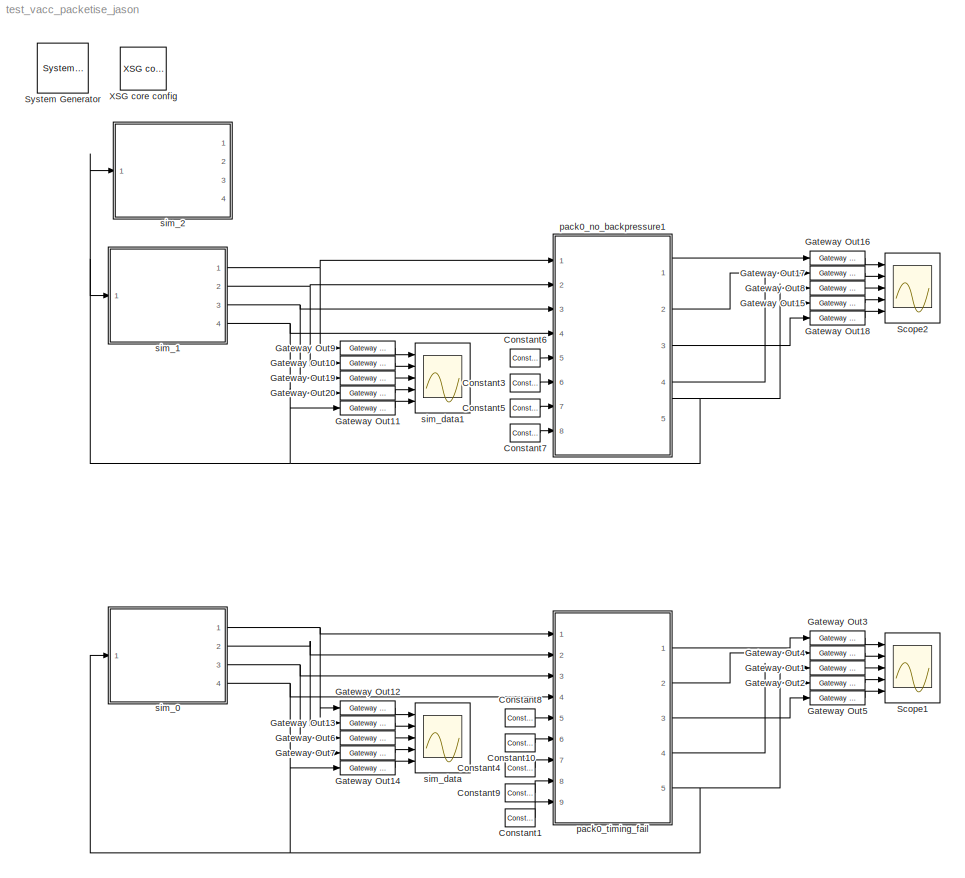
MODEL test_vacc_packetise_jason
KIND model
BLOCK [Reference]  System Generator  REF=xbsIndex_r3/ System Generator
  AttributesFormatString = System\\nGenerator
  Ports = []
  ShowPortLabels = on
  SourceBlock = xbsIndex_r3/ System Generator
  SourceType = Xilinx System Generator
  Tag = genX
  UserData = DataTag0
  UserDataPersistent = on
  core_generation = According to Block Masks
  dbl_ovrd = According to Block Masks
  deprecated_control = off
  directory = ./netlist
  eval_field = 0
  incr_netlist = off
  package = bg575
  part = xc2v1000
  run_coregen = off
  simulink_period = 1
  speed = -4
  synthesis_tool = XST
  sysclk_period = 100
  testbench = off
  trim_vbits = Everywhere in SubSystem
  xilinxfamily = Virtex2
BLOCK [Reference] Constant1  REF=xbsIndex_r3/Constant
  Ports = [0, 1]
  SourceBlock = xbsIndex_r3/Constant
  SourceType = Xilinx Constant Block
  arith_type = Boolean
  bin_pt = 0
  carry = CIN
  const = 1
  dbl_ovrd = off
  equ = P=C
  explicit_period = on
  inp1 = P
  inp2 = PCIN>>17
  iostate = 0
  n_bits = 32
  opr = +
  opselect = C
  period = 1
BLOCK [Reference] Constant10  REF=xbsIndex_r3/Constant
  Ports = [0, 1]
  SourceBlock = xbsIndex_r3/Constant
  SourceType = Xilinx Constant Block
  arith_type = Unsigned
  bin_pt = 0
  carry = CIN
  const = 1
  dbl_ovrd = off
  equ = P=C
  explicit_period = on
  inp1 = P
  inp2 = PCIN>>17
  iostate = 0
  n_bits = 32
  opr = +
  opselect = C
  period = 1
BLOCK [Reference] Constant3  REF=xbsIndex_r3/Constant
  Ports = [0, 1]
  SourceBlock = xbsIndex_r3/Constant
  SourceType = Xilinx Constant Block
  arith_type = Unsigned
  bin_pt = 0
  carry = CIN
  const = 1
  dbl_ovrd = off
  equ = P=C
  explicit_period = on
  inp1 = P
  inp2 = PCIN>>17
  iostate = 0
  n_bits = 32
  opr = +
  opselect = C
  period = 1
BLOCK [Reference] Constant4  REF=xbsIndex_r3/Constant
  Ports = [0, 1]
  SourceBlock = xbsIndex_r3/Constant
  SourceType = Xilinx Constant Block
  arith_type = Unsigned
  bin_pt = 0
  carry = CIN
  const = 0
  dbl_ovrd = off
  equ = P=C
  explicit_period = on
  inp1 = P
  inp2 = PCIN>>17
  iostate = 0
  n_bits = 32
  opr = +
  opselect = C
  period = 1
BLOCK [Reference] Constant5  REF=xbsIndex_r3/Constant
  Ports = [0, 1]
  SourceBlock = xbsIndex_r3/Constant
  SourceType = Xilinx Constant Block
  arith_type = Unsigned
  bin_pt = 0
  carry = CIN
  const = 0
  dbl_ovrd = off
  equ = P=C
  explicit_period = on
  inp1 = P
  inp2 = PCIN>>17
  iostate = 0
  n_bits = 32
  opr = +
  opselect = C
  period = 1
BLOCK [Reference] Constant6  REF=xbsIndex_r3/Constant
  Ports = [0, 1]
  SourceBlock = xbsIndex_r3/Constant
  SourceType = Xilinx Constant Block
  arith_type = Unsigned
  bin_pt = 0
  carry = CIN
  const = 0
  dbl_ovrd = off
  equ = P=C
  explicit_period = on
  inp1 = P
  inp2 = PCIN>>17
  iostate = 0
  n_bits = 32
  opr = +
  opselect = C
  period = 1
BLOCK [Reference] Constant7  REF=xbsIndex_r3/Constant
  Ports = [0, 1]
  SourceBlock = xbsIndex_r3/Constant
  SourceType = Xilinx Constant Block
  arith_type = Unsigned
  bin_pt = 0
  carry = CIN
  const = 400
  dbl_ovrd = off
  equ = P=C
  explicit_period = on
  inp1 = P
  inp2 = PCIN>>17
  iostate = 0
  n_bits = 32
  opr = +
  opselect = C
  period = 1
BLOCK [Reference] Constant8  REF=xbsIndex_r3/Constant
  Ports = [0, 1]
  SourceBlock = xbsIndex_r3/Constant
  SourceType = Xilinx Constant Block
  arith_type = Unsigned
  bin_pt = 0
  carry = CIN
  const = 0
  dbl_ovrd = off
  equ = P=C
  explicit_period = on
  inp1 = P
  inp2 = PCIN>>17
  iostate = 0
  n_bits = 16
  opr = +
  opselect = C
  period = 1
BLOCK [Reference] Constant9  REF=xbsIndex_r3/Constant
  Ports = [0, 1]
  SourceBlock = xbsIndex_r3/Constant
  SourceType = Xilinx Constant Block
  arith_type = Unsigned
  bin_pt = 0
  carry = CIN
  const = 400
  dbl_ovrd = off
  equ = P=C
  explicit_period = on
  inp1 = P
  inp2 = PCIN>>17
  iostate = 0
  n_bits = 32
  opr = +
  opselect = C
  period = 1
BLOCK [Reference] Gateway Out1  REF=xbsIndex_r3/Gateway Out
  LOCs = {}
  Ports = [1, 1]
  SourceBlock = xbsIndex_r3/Gateway Out
  SourceType = Xilinx Gateway Out
  arith_type = Boolean
  bin_pt = 6
  hdl_port = on
  locs_specified = off
  nbits = 8
  needs_fixed_name = off
  output_type = Double
  overflow = Wrap
  quantization = Truncate
  show_param = off
  timing_constraint = None
  xl_area = [0, 0, 0, 0, 0, 0, 0]
  xl_use_area = off
BLOCK [Reference] Gateway Out10  REF=xbsIndex_r3/Gateway Out
  LOCs = {}
  Ports = [1, 1]
  SourceBlock = xbsIndex_r3/Gateway Out
  SourceType = Xilinx Gateway Out
  arith_type = Boolean
  bin_pt = 6
  hdl_port = on
  locs_specified = off
  nbits = 8
  needs_fixed_name = off
  output_type = Double
  overflow = Wrap
  quantization = Truncate
  show_param = off
  timing_constraint = None
  xl_area = [0, 0, 0, 0, 0, 0, 0]
  xl_use_area = off
BLOCK [Reference] Gateway Out11  REF=xbsIndex_r3/Gateway Out
  LOCs = {}
  Ports = [1, 1]
  SourceBlock = xbsIndex_r3/Gateway Out
  SourceType = Xilinx Gateway Out
  arith_type = Boolean
  bin_pt = 6
  hdl_port = on
  locs_specified = off
  nbits = 8
  needs_fixed_name = off
  output_type = Double
  overflow = Wrap
  quantization = Truncate
  show_param = off
  timing_constraint = None
  xl_area = [0, 0, 0, 0, 0, 0, 0]
  xl_use_area = off
BLOCK [Reference] Gateway Out12  REF=xbsIndex_r3/Gateway Out
  LOCs = {}
  Ports = [1, 1]
  SourceBlock = xbsIndex_r3/Gateway Out
  SourceType = Xilinx Gateway Out
  arith_type = Boolean
  bin_pt = 6
  hdl_port = on
  locs_specified = off
  nbits = 8
  needs_fixed_name = off
  output_type = Double
  overflow = Wrap
  quantization = Truncate
  show_param = off
  timing_constraint = None
  xl_area = [0, 0, 0, 0, 0, 0, 0]
  xl_use_area = off
BLOCK [Reference] Gateway Out13  REF=xbsIndex_r3/Gateway Out
  LOCs = {}
  Ports = [1, 1]
  SourceBlock = xbsIndex_r3/Gateway Out
  SourceType = Xilinx Gateway Out
  arith_type = Boolean
  bin_pt = 6
  hdl_port = on
  locs_specified = off
  nbits = 8
  needs_fixed_name = off
  output_type = Double
  overflow = Wrap
  quantization = Truncate
  show_param = off
  timing_constraint = None
  xl_area = [0, 0, 0, 0, 0, 0, 0]
  xl_use_area = off
BLOCK [Reference] Gateway Out14  REF=xbsIndex_r3/Gateway Out
  LOCs = {}
  Ports = [1, 1]
  SourceBlock = xbsIndex_r3/Gateway Out
  SourceType = Xilinx Gateway Out
  arith_type = Boolean
  bin_pt = 6
  hdl_port = on
  locs_specified = off
  nbits = 8
  needs_fixed_name = off
  output_type = Double
  overflow = Wrap
  quantization = Truncate
  show_param = off
  timing_constraint = None
  xl_area = [0, 0, 0, 0, 0, 0, 0]
  xl_use_area = off
BLOCK [Reference] Gateway Out15  REF=xbsIndex_r3/Gateway Out
  LOCs = {}
  Ports = [1, 1]
  SourceBlock = xbsIndex_r3/Gateway Out
  SourceType = Xilinx Gateway Out
  arith_type = Boolean
  bin_pt = 6
  hdl_port = on
  locs_specified = off
  nbits = 8
  needs_fixed_name = off
  output_type = Double
  overflow = Wrap
  quantization = Truncate
  show_param = off
  timing_constraint = None
  xl_area = [0, 0, 0, 0, 0, 0, 0]
  xl_use_area = off
BLOCK [Reference] Gateway Out16  REF=xbsIndex_r3/Gateway Out
  LOCs = {}
  Ports = [1, 1]
  SourceBlock = xbsIndex_r3/Gateway Out
  SourceType = Xilinx Gateway Out
  arith_type = Boolean
  bin_pt = 6
  hdl_port = on
  locs_specified = off
  nbits = 8
  needs_fixed_name = off
  output_type = Double
  overflow = Wrap
  quantization = Truncate
  show_param = off
  timing_constraint = None
  xl_area = [0, 0, 0, 0, 0, 0, 0]
  xl_use_area = off
BLOCK [Reference] Gateway Out17  REF=xbsIndex_r3/Gateway Out
  LOCs = {}
  Ports = [1, 1]
  SourceBlock = xbsIndex_r3/Gateway Out
  SourceType = Xilinx Gateway Out
  arith_type = Boolean
  bin_pt = 6
  hdl_port = on
  locs_specified = off
  nbits = 8
  needs_fixed_name = off
  output_type = Double
  overflow = Wrap
  quantization = Truncate
  show_param = off
  timing_constraint = None
  xl_area = [0, 0, 0, 0, 0, 0, 0]
  xl_use_area = off
BLOCK [Reference] Gateway Out18  REF=xbsIndex_r3/Gateway Out
  LOCs = {}
  Ports = [1, 1]
  SourceBlock = xbsIndex_r3/Gateway Out
  SourceType = Xilinx Gateway Out
  arith_type = Boolean
  bin_pt = 6
  hdl_port = on
  locs_specified = off
  nbits = 8
  needs_fixed_name = off
  output_type = Double
  overflow = Wrap
  quantization = Truncate
  show_param = off
  timing_constraint = None
  xl_area = [0, 0, 0, 0, 0, 0, 0]
  xl_use_area = off
BLOCK [Reference] Gateway Out19  REF=xbsIndex_r3/Gateway Out
  LOCs = {}
  Ports = [1, 1]
  SourceBlock = xbsIndex_r3/Gateway Out
  SourceType = Xilinx Gateway Out
  arith_type = Boolean
  bin_pt = 6
  hdl_port = on
  locs_specified = off
  nbits = 8
  needs_fixed_name = off
  output_type = Double
  overflow = Wrap
  quantization = Truncate
  show_param = off
  timing_constraint = None
  xl_area = [0, 0, 0, 0, 0, 0, 0]
  xl_use_area = off
BLOCK [Reference] Gateway Out2  REF=xbsIndex_r3/Gateway Out
  LOCs = {}
  Ports = [1, 1]
  SourceBlock = xbsIndex_r3/Gateway Out
  SourceType = Xilinx Gateway Out
  arith_type = Boolean
  bin_pt = 6
  hdl_port = on
  locs_specified = off
  nbits = 8
  needs_fixed_name = off
  output_type = Double
  overflow = Wrap
  quantization = Truncate
  show_param = off
  timing_constraint = None
  xl_area = [0, 0, 0, 0, 0, 0, 0]
  xl_use_area = off
BLOCK [Reference] Gateway Out20  REF=xbsIndex_r3/Gateway Out
  LOCs = {}
  Ports = [1, 1]
  SourceBlock = xbsIndex_r3/Gateway Out
  SourceType = Xilinx Gateway Out
  arith_type = Boolean
  bin_pt = 6
  hdl_port = on
  locs_specified = off
  nbits = 8
  needs_fixed_name = off
  output_type = Double
  overflow = Wrap
  quantization = Truncate
  show_param = off
  timing_constraint = None
  xl_area = [0, 0, 0, 0, 0, 0, 0]
  xl_use_area = off
BLOCK [Reference] Gateway Out3  REF=xbsIndex_r3/Gateway Out
  LOCs = {}
  Ports = [1, 1]
  SourceBlock = xbsIndex_r3/Gateway Out
  SourceType = Xilinx Gateway Out
  arith_type = Boolean
  bin_pt = 6
  hdl_port = on
  locs_specified = off
  nbits = 8
  needs_fixed_name = off
  output_type = Double
  overflow = Wrap
  quantization = Truncate
  show_param = off
  timing_constraint = None
  xl_area = [0, 0, 0, 0, 0, 0, 0]
  xl_use_area = off
BLOCK [Reference] Gateway Out4  REF=xbsIndex_r3/Gateway Out
  LOCs = {}
  Ports = [1, 1]
  SourceBlock = xbsIndex_r3/Gateway Out
  SourceType = Xilinx Gateway Out
  arith_type = Boolean
  bin_pt = 6
  hdl_port = on
  locs_specified = off
  nbits = 8
  needs_fixed_name = off
  output_type = Double
  overflow = Wrap
  quantization = Truncate
  show_param = off
  timing_constraint = None
  xl_area = [0, 0, 0, 0, 0, 0, 0]
  xl_use_area = off
BLOCK [Reference] Gateway Out5  REF=xbsIndex_r3/Gateway Out
  LOCs = {}
  Ports = [1, 1]
  SourceBlock = xbsIndex_r3/Gateway Out
  SourceType = Xilinx Gateway Out
  arith_type = Boolean
  bin_pt = 6
  hdl_port = on
  locs_specified = off
  nbits = 8
  needs_fixed_name = off
  output_type = Double
  overflow = Wrap
  quantization = Truncate
  show_param = off
  timing_constraint = None
  xl_area = [0, 0, 0, 0, 0, 0, 0]
  xl_use_area = off
BLOCK [Reference] Gateway Out6  REF=xbsIndex_r3/Gateway Out
  LOCs = {}
  Ports = [1, 1]
  SourceBlock = xbsIndex_r3/Gateway Out
  SourceType = Xilinx Gateway Out
  arith_type = Boolean
  bin_pt = 6
  hdl_port = on
  locs_specified = off
  nbits = 8
  needs_fixed_name = off
  output_type = Double
  overflow = Wrap
  quantization = Truncate
  show_param = off
  timing_constraint = None
  xl_area = [0, 0, 0, 0, 0, 0, 0]
  xl_use_area = off
BLOCK [Reference] Gateway Out7  REF=xbsIndex_r3/Gateway Out
  LOCs = {}
  Ports = [1, 1]
  SourceBlock = xbsIndex_r3/Gateway Out
  SourceType = Xilinx Gateway Out
  arith_type = Boolean
  bin_pt = 6
  hdl_port = on
  locs_specified = off
  nbits = 8
  needs_fixed_name = off
  output_type = Double
  overflow = Wrap
  quantization = Truncate
  show_param = off
  timing_constraint = None
  xl_area = [0, 0, 0, 0, 0, 0, 0]
  xl_use_area = off
BLOCK [Reference] Gateway Out8  REF=xbsIndex_r3/Gateway Out
  LOCs = {}
  Ports = [1, 1]
  SourceBlock = xbsIndex_r3/Gateway Out
  SourceType = Xilinx Gateway Out
  arith_type = Boolean
  bin_pt = 6
  hdl_port = on
  locs_specified = off
  nbits = 8
  needs_fixed_name = off
  output_type = Double
  overflow = Wrap
  quantization = Truncate
  show_param = off
  timing_constraint = None
  xl_area = [0, 0, 0, 0, 0, 0, 0]
  xl_use_area = off
BLOCK [Reference] Gateway Out9  REF=xbsIndex_r3/Gateway Out
  LOCs = {}
  Ports = [1, 1]
  SourceBlock = xbsIndex_r3/Gateway Out
  SourceType = Xilinx Gateway Out
  arith_type = Boolean
  bin_pt = 6
  hdl_port = on
  locs_specified = off
  nbits = 8
  needs_fixed_name = off
  output_type = Double
  overflow = Wrap
  quantization = Truncate
  show_param = off
  timing_constraint = None
  xl_area = [0, 0, 0, 0, 0, 0, 0]
  xl_use_area = off
BLOCK [Scope] Scope1
  DataFormat = StructureWithTime
  LimitDataPoints = off
  NumInputPorts = 5
  Ports = [5]
  SaveName = ScopeData2
  YMax = 453.6~1~1~1~1
  YMin = 410.4~-1~-1~-1~0
  ZoomMode = yonly
BLOCK [Scope] Scope2
  DataFormat = StructureWithTime
  LimitDataPoints = off
  NumInputPorts = 5
  Ports = [5]
  SaveName = ScopeData4
  YMax = 453.6~1~1~1~1
  YMin = 410.4~-1~-1~-1~0
  ZoomMode = xonly
BLOCK [Reference] XSG core config  REF=xps_library/XSG core config  (lib defined in mdl_00b5cec29cd0, mdl_02ab6ecaa3d1, +5 more)
  Ports = []
  ShowPortLabels = on
  SourceBlock = xps_library/XSG core config
  SourceType = xsg core config
  Tag = xps:xsg
  clk_rate = 205
  clk_src = sys_clk2x
  gpio_clk_bit_index = 0
  gpio_clk_io_group = iBOB:sma
  hw_sys = BEE2_usr
  ibob_linux = off
  mpc_type = powerpc405
  sample_period = 1
  synthesis_tool = XST
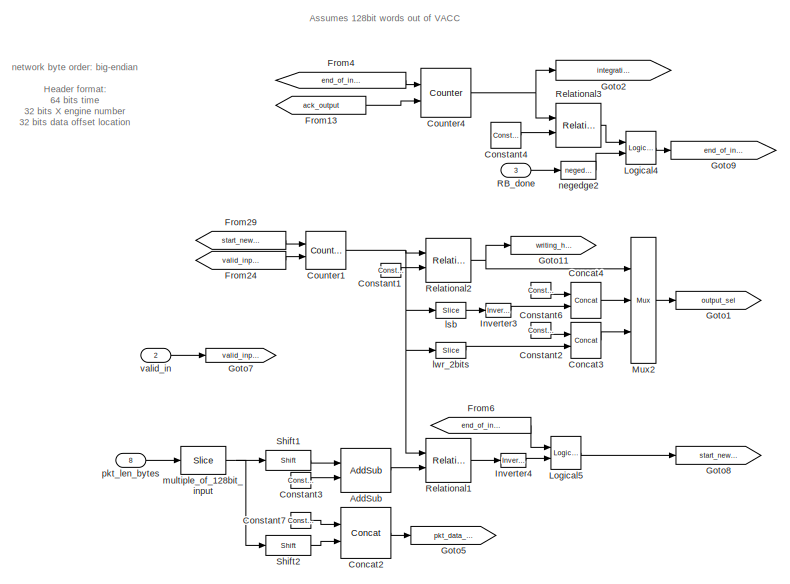
[diagram: pack0_no_backpressure1 - part 1/2, left side, full height]
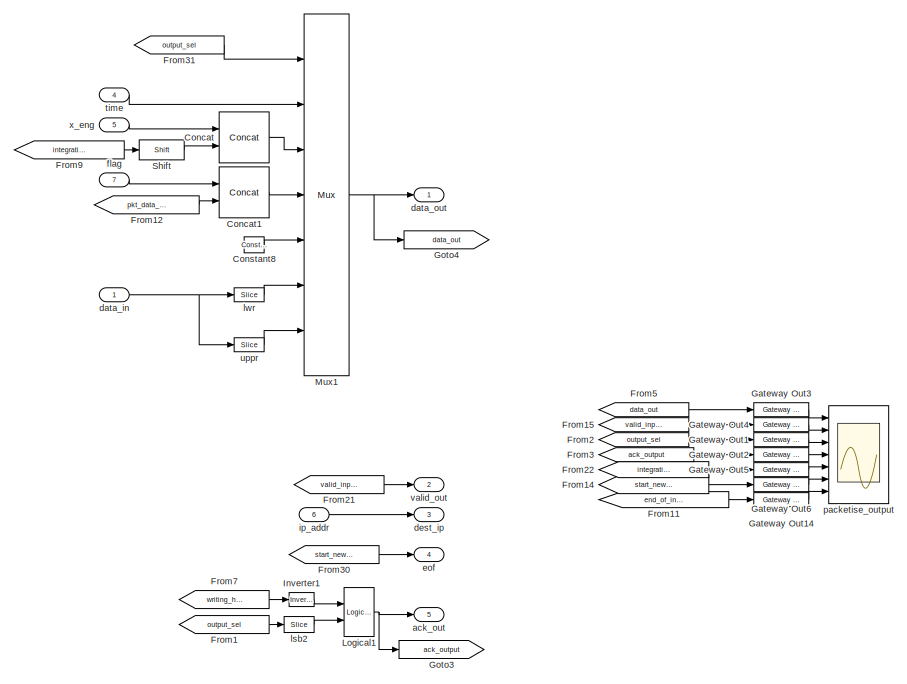
[diagram: pack0_no_backpressure1 - part 2/2, right side, full height]
BLOCK [SubSystem] pack0_no_backpressure1
  MaskEnableString = on
  MaskIconFrame = on
  MaskIconOpaque = on
  MaskIconRotate = none
  MaskIconUnits = autoscale
  MaskPromptString = vector length
  MaskStyleString = edit
  MaskToolTipString = on
  MaskTunableValueString = on
  MaskValueString = 100
  MaskVariables = vector_len=@1;
  MaskVisibilityString = on
  MinAlgLoopOccurrences = off
  Ports = [8, 5]
  RTWSystemCode = Auto
  TreatAsAtomicUnit = off
BLOCK [Reference] pack0_no_backpressure1/AddSub  REF=xbsIndex_r3/AddSub
  Ports = [2, 1]
  SourceBlock = xbsIndex_r3/AddSub
  SourceType = Xilinx Adder/Subtractor
  arith_type = Unsigned
  bin_pt = 2
  dbl_ovrd = off
  en = off
  explicit_period = on
  gen_core = off
  latency = 2
  mode = Addition
  n_bits = 8
  overflow = Wrap
  period = 1
  pipeline = off
  precision = Full
  quantization = Truncate
  show_param = off
  use_carryin = off
  use_carryout = off
  use_core = on
  use_rpm = on
  xl_area = [0, 0, 0, 0, 0, 0, 0]
  xl_use_area = off
BLOCK [Reference] pack0_no_backpressure1/Concat  REF=xbsIndex_r3/Concat
  Ports = [2, 1]
  SourceBlock = xbsIndex_r3/Concat
  SourceType = Xilinx Bus Concatenator
  dbl_ovrd = off
  explicit_period = on
  num_inputs = 2
  period = 1
BLOCK [Reference] pack0_no_backpressure1/Concat1  REF=xbsIndex_r3/Concat
  Ports = [2, 1]
  SourceBlock = xbsIndex_r3/Concat
  SourceType = Xilinx Bus Concatenator
  dbl_ovrd = off
  explicit_period = off
  num_inputs = 2
  period = 1
BLOCK [Reference] pack0_no_backpressure1/Concat2  REF=xbsIndex_r3/Concat
  Ports = [2, 1]
  SourceBlock = xbsIndex_r3/Concat
  SourceType = Xilinx Bus Concatenator
  dbl_ovrd = off
  explicit_period = off
  num_inputs = 2
  period = 1
BLOCK [Reference] pack0_no_backpressure1/Concat3  REF=xbsIndex_r3/Concat
  Ports = [2, 1]
  SourceBlock = xbsIndex_r3/Concat
  SourceType = Xilinx Bus Concatenator
  dbl_ovrd = off
  explicit_period = off
  num_inputs = 2
  period = 1
BLOCK [Reference] pack0_no_backpressure1/Concat4  REF=xbsIndex_r3/Concat
  Ports = [2, 1]
  SourceBlock = xbsIndex_r3/Concat
  SourceType = Xilinx Bus Concatenator
  dbl_ovrd = off
  explicit_period = off
  num_inputs = 2
  period = 1
BLOCK [Reference] pack0_no_backpressure1/Constant1  REF=xbsIndex_r3/Constant
  Ports = [0, 1]
  SourceBlock = xbsIndex_r3/Constant
  SourceType = Xilinx Constant Block
  arith_type = Unsigned
  bin_pt = 0
  carry = CIN
  const = 2
  dbl_ovrd = off
  equ = P=C
  explicit_period = on
  inp1 = P
  inp2 = PCIN>>17
  iostate = 0
  n_bits = 2
  opr = +
  opselect = C
  period = 1
BLOCK [Reference] pack0_no_backpressure1/Constant2  REF=xbsIndex_r3/Constant
  Ports = [0, 1]
  SourceBlock = xbsIndex_r3/Constant
  SourceType = Xilinx Constant Block
  arith_type = Unsigned
  bin_pt = 0
  carry = CIN
  const = 0
  dbl_ovrd = off
  equ = P=C
  explicit_period = on
  inp1 = P
  inp2 = PCIN>>17
  iostate = 0
  n_bits = 1
  opr = +
  opselect = C
  period = 1
BLOCK [Reference] pack0_no_backpressure1/Constant3  REF=xbsIndex_r3/Constant
  Ports = [0, 1]
  SourceBlock = xbsIndex_r3/Constant
  SourceType = Xilinx Constant Block
  arith_type = Unsigned
  bin_pt = 0
  carry = CIN
  const = 2
  dbl_ovrd = off
  equ = P=C
  explicit_period = on
  inp1 = P
  inp2 = PCIN>>17
  iostate = 0
  n_bits = 32
  opr = +
  opselect = C
  period = 1
BLOCK [Reference] pack0_no_backpressure1/Constant4  REF=xbsIndex_r3/Constant
  Ports = [0, 1]
  SourceBlock = xbsIndex_r3/Constant
  SourceType = Xilinx Constant Block
  arith_type = Unsigned
  bin_pt = 0
  carry = CIN
  const = 2*vector_len-1
  dbl_ovrd = off
  equ = P=C
  explicit_period = off
  inp1 = P
  inp2 = PCIN>>17
  iostate = 0
  n_bits = 32
  opr = +
  opselect = C
  period = 1
BLOCK [Reference] pack0_no_backpressure1/Constant6  REF=xbsIndex_r3/Constant
  Ports = [0, 1]
  SourceBlock = xbsIndex_r3/Constant
  SourceType = Xilinx Constant Block
  arith_type = Unsigned
  bin_pt = 0
  carry = CIN
  const = 2
  dbl_ovrd = off
  equ = P=C
  explicit_period = on
  inp1 = P
  inp2 = PCIN>>17
  iostate = 0
  n_bits = 2
  opr = +
  opselect = C
  period = 1
BLOCK [Reference] pack0_no_backpressure1/Constant7  REF=xbsIndex_r3/Constant
  Ports = [0, 1]
  SourceBlock = xbsIndex_r3/Constant
  SourceType = Xilinx Constant Block
  arith_type = Unsigned
  bin_pt = 0
  carry = CIN
  const = 0
  dbl_ovrd = off
  equ = P=C
  explicit_period = on
  inp1 = P
  inp2 = PCIN>>17
  iostate = 0
  n_bits = 32-28
  opr = +
  opselect = C
  period = 1
BLOCK [Reference] pack0_no_backpressure1/Constant8  REF=xbsIndex_r3/Constant
  Ports = [0, 1]
  SourceBlock = xbsIndex_r3/Constant
  SourceType = Xilinx Constant Block
  arith_type = Unsigned
  bin_pt = 0
  carry = CIN
  const = 0
  dbl_ovrd = off
  equ = P=C
  explicit_period = on
  inp1 = P
  inp2 = PCIN>>17
  iostate = 0
  n_bits = 64
  opr = +
  opselect = C
  period = 1
BLOCK [Reference] pack0_no_backpressure1/Counter1  REF=xbsIndex_r3/Counter
  Ports = [2, 1]
  SourceBlock = xbsIndex_r3/Counter
  SourceType = Xilinx Counter Block
  arith_type = Unsigned
  bin_pt = 0
  cnt_by_val = 1
  cnt_to = 1023
  cnt_type = Free Running
  dbl_ovrd = off
  en = on
  explicit_period = on
  gen_core = off
  load_pin = off
  n_bits = 32
  operation = Up
  period = 1
  rst = on
  show_param = off
  start_count = 0
  use_rpm = on
  xl_area = [0, 0, 0, 0, 0, 0, 0]
  xl_use_area = off
BLOCK [Reference] pack0_no_backpressure1/Counter4  REF=xbsIndex_r3/Counter
  Ports = [2, 1]
  SourceBlock = xbsIndex_r3/Counter
  SourceType = Xilinx Counter Block
  arith_type = Unsigned
  bin_pt = 0
  cnt_by_val = 1
  cnt_to = 1023
  cnt_type = Free Running
  dbl_ovrd = off
  en = on
  explicit_period = on
  gen_core = off
  load_pin = off
  n_bits = 32
  operation = Up
  period = 1
  rst = on
  show_param = off
  start_count = 0
  use_rpm = on
  xl_area = [0, 0, 0, 0, 0, 0, 0]
  xl_use_area = off
BLOCK [From] pack0_no_backpressure1/From1
  CloseFcn = tagdialog Close
  GotoTag = output_sel
BLOCK [From] pack0_no_backpressure1/From11
  CloseFcn = tagdialog Close
  GotoTag = end_of_integration
BLOCK [From] pack0_no_backpressure1/From12
  CloseFcn = tagdialog Close
  GotoTag = pkt_data_size
BLOCK [From] pack0_no_backpressure1/From13
  CloseFcn = tagdialog Close
  GotoTag = ack_output
BLOCK [From] pack0_no_backpressure1/From14
  CloseFcn = tagdialog Close
  GotoTag = start_new_packet
BLOCK [From] pack0_no_backpressure1/From15
  CloseFcn = tagdialog Close
  GotoTag = valid_input
BLOCK [From] pack0_no_backpressure1/From2
  CloseFcn = tagdialog Close
  GotoTag = output_sel
BLOCK [From] pack0_no_backpressure1/From21
  CloseFcn = tagdialog Close
  GotoTag = valid_input
BLOCK [From] pack0_no_backpressure1/From22
  CloseFcn = tagdialog Close
  GotoTag = integration_position
BLOCK [From] pack0_no_backpressure1/From24
  CloseFcn = tagdialog Close
  GotoTag = valid_input
BLOCK [From] pack0_no_backpressure1/From29
  CloseFcn = tagdialog Close
  GotoTag = start_new_packet
BLOCK [From] pack0_no_backpressure1/From3
  CloseFcn = tagdialog Close
  GotoTag = ack_output
BLOCK [From] pack0_no_backpressure1/From30
  CloseFcn = tagdialog Close
  GotoTag = start_new_packet
BLOCK [From] pack0_no_backpressure1/From31
  CloseFcn = tagdialog Close
  GotoTag = output_sel
BLOCK [From] pack0_no_backpressure1/From4
  CloseFcn = tagdialog Close
  GotoTag = end_of_integration
BLOCK [From] pack0_no_backpressure1/From5
  CloseFcn = tagdialog Close
  GotoTag = data_out
BLOCK [From] pack0_no_backpressure1/From6
  CloseFcn = tagdialog Close
  GotoTag = end_of_integration
BLOCK [From] pack0_no_backpressure1/From7
  CloseFcn = tagdialog Close
  GotoTag = writing_header
BLOCK [From] pack0_no_backpressure1/From9
  CloseFcn = tagdialog Close
  GotoTag = integration_position
BLOCK [Reference] pack0_no_backpressure1/Gateway Out1  REF=xbsIndex_r3/Gateway Out
  LOCs = {}
  Ports = [1, 1]
  SourceBlock = xbsIndex_r3/Gateway Out
  SourceType = Xilinx Gateway Out
  arith_type = Boolean
  bin_pt = 6
  hdl_port = on
  locs_specified = off
  nbits = 8
  needs_fixed_name = off
  output_type = Double
  overflow = Wrap
  quantization = Truncate
  show_param = off
  timing_constraint = None
  xl_area = [0, 0, 0, 0, 0, 0, 0]
  xl_use_area = off
BLOCK [Reference] pack0_no_backpressure1/Gateway Out14  REF=xbsIndex_r3/Gateway Out
  LOCs = {}
  Ports = [1, 1]
  SourceBlock = xbsIndex_r3/Gateway Out
  SourceType = Xilinx Gateway Out
  arith_type = Boolean
  bin_pt = 6
  hdl_port = on
  locs_specified = off
  nbits = 8
  needs_fixed_name = off
  output_type = Double
  overflow = Wrap
  quantization = Truncate
  show_param = off
  timing_constraint = None
  xl_area = [0, 0, 0, 0, 0, 0, 0]
  xl_use_area = off
BLOCK [Reference] pack0_no_backpressure1/Gateway Out2  REF=xbsIndex_r3/Gateway Out
  LOCs = {}
  Ports = [1, 1]
  SourceBlock = xbsIndex_r3/Gateway Out
  SourceType = Xilinx Gateway Out
  arith_type = Boolean
  bin_pt = 6
  hdl_port = on
  locs_specified = off
  nbits = 8
  needs_fixed_name = off
  output_type = Double
  overflow = Wrap
  quantization = Truncate
  show_param = off
  timing_constraint = None
  xl_area = [0, 0, 0, 0, 0, 0, 0]
  xl_use_area = off
BLOCK [Reference] pack0_no_backpressure1/Gateway Out3  REF=xbsIndex_r3/Gateway Out
  LOCs = {}
  Ports = [1, 1]
  SourceBlock = xbsIndex_r3/Gateway Out
  SourceType = Xilinx Gateway Out
  arith_type = Boolean
  bin_pt = 6
  hdl_port = on
  locs_specified = off
  nbits = 8
  needs_fixed_name = off
  output_type = Double
  overflow = Wrap
  quantization = Truncate
  show_param = off
  timing_constraint = None
  xl_area = [0, 0, 0, 0, 0, 0, 0]
  xl_use_area = off
BLOCK [Reference] pack0_no_backpressure1/Gateway Out4  REF=xbsIndex_r3/Gateway Out
  LOCs = {}
  Ports = [1, 1]
  SourceBlock = xbsIndex_r3/Gateway Out
  SourceType = Xilinx Gateway Out
  arith_type = Boolean
  bin_pt = 6
  hdl_port = on
  locs_specified = off
  nbits = 8
  needs_fixed_name = off
  output_type = Double
  overflow = Wrap
  quantization = Truncate
  show_param = off
  timing_constraint = None
  xl_area = [0, 0, 0, 0, 0, 0, 0]
  xl_use_area = off
BLOCK [Reference] pack0_no_backpressure1/Gateway Out5  REF=xbsIndex_r3/Gateway Out
  LOCs = {}
  Ports = [1, 1]
  SourceBlock = xbsIndex_r3/Gateway Out
  SourceType = Xilinx Gateway Out
  arith_type = Boolean
  bin_pt = 6
  hdl_port = on
  locs_specified = off
  nbits = 8
  needs_fixed_name = off
  output_type = Double
  overflow = Wrap
  quantization = Truncate
  show_param = off
  timing_constraint = None
  xl_area = [0, 0, 0, 0, 0, 0, 0]
  xl_use_area = off
BLOCK [Reference] pack0_no_backpressure1/Gateway Out6  REF=xbsIndex_r3/Gateway Out
  LOCs = {}
  Ports = [1, 1]
  SourceBlock = xbsIndex_r3/Gateway Out
  SourceType = Xilinx Gateway Out
  arith_type = Boolean
  bin_pt = 6
  hdl_port = on
  locs_specified = off
  nbits = 8
  needs_fixed_name = off
  output_type = Double
  overflow = Wrap
  quantization = Truncate
  show_param = off
  timing_constraint = None
  xl_area = [0, 0, 0, 0, 0, 0, 0]
  xl_use_area = off
BLOCK [Goto] pack0_no_backpressure1/Goto1
  GotoTag = output_sel
  TagVisibility = local
BLOCK [Goto] pack0_no_backpressure1/Goto11
  GotoTag = writing_header
  TagVisibility = local
BLOCK [Goto] pack0_no_backpressure1/Goto2
  GotoTag = integration_position
  TagVisibility = local
BLOCK [Goto] pack0_no_backpressure1/Goto3
  GotoTag = ack_output
  TagVisibility = local
BLOCK [Goto] pack0_no_backpressure1/Goto4
  GotoTag = data_out
  TagVisibility = local
BLOCK [Goto] pack0_no_backpressure1/Goto5
  GotoTag = pkt_data_size
  TagVisibility = local
BLOCK [Goto] pack0_no_backpressure1/Goto7
  GotoTag = valid_input
  TagVisibility = local
BLOCK [Goto] pack0_no_backpressure1/Goto8
  GotoTag = start_new_packet
  TagVisibility = local
BLOCK [Goto] pack0_no_backpressure1/Goto9
  GotoTag = end_of_integration
  TagVisibility = local
BLOCK [Reference] pack0_no_backpressure1/Inverter1  REF=xbsIndex_r3/Inverter
  Ports = [1, 1]
  SourceBlock = xbsIndex_r3/Inverter
  SourceType = Xilinx Inverter
  dbl_ovrd = off
  en = off
  explicit_period = off
  latency = 0
  period = 1
  show_param = off
  xl_area = [0, 0, 0, 0, 0, 0, 0]
  xl_use_area = off
BLOCK [Reference] pack0_no_backpressure1/Inverter3  REF=xbsIndex_r3/Inverter
  Ports = [1, 1]
  SourceBlock = xbsIndex_r3/Inverter
  SourceType = Xilinx Inverter
  dbl_ovrd = off
  en = off
  explicit_period = off
  latency = 0
  period = 1
  show_param = off
  xl_area = [0, 0, 0, 0, 0, 0, 0]
  xl_use_area = off
BLOCK [Reference] pack0_no_backpressure1/Inverter4  REF=xbsIndex_r3/Inverter
  Ports = [1, 1]
  SourceBlock = xbsIndex_r3/Inverter
  SourceType = Xilinx Inverter
  dbl_ovrd = off
  en = off
  explicit_period = off
  latency = 0
  period = 1
  show_param = off
  xl_area = [0, 0, 0, 0, 0, 0, 0]
  xl_use_area = off
BLOCK [Reference] pack0_no_backpressure1/Logical1  REF=xbsIndex_r3/Logical
  Ports = [2, 1]
  SourceBlock = xbsIndex_r3/Logical
  SourceType = Xilinx Logical Block
  align_bp = on
  arith_type = Unsigned
  bin_pt = 2
  dbl_ovrd = off
  en = off
  explicit_period = off
  inputs = 2
  latency = 0
  logical_function = AND
  n_bits = 8
  period = 1
  precision = Full
  show_param = off
  xl_area = [0, 0, 0, 0, 0, 0, 0]
  xl_use_area = off
BLOCK [Reference] pack0_no_backpressure1/Logical4  REF=xbsIndex_r3/Logical
  Ports = [2, 1]
  SourceBlock = xbsIndex_r3/Logical
  SourceType = Xilinx Logical Block
  align_bp = on
  arith_type = Unsigned
  bin_pt = 2
  dbl_ovrd = off
  en = off
  explicit_period = off
  inputs = 2
  latency = 0
  logical_function = OR
  n_bits = 8
  period = 1
  precision = Full
  show_param = off
  xl_area = [0, 0, 0, 0, 0, 0, 0]
  xl_use_area = off
BLOCK [Reference] pack0_no_backpressure1/Logical5  REF=xbsIndex_r3/Logical
  Ports = [2, 1]
  SourceBlock = xbsIndex_r3/Logical
  SourceType = Xilinx Logical Block
  align_bp = on
  arith_type = Unsigned
  bin_pt = 2
  dbl_ovrd = off
  en = off
  explicit_period = off
  inputs = 2
  latency = 0
  logical_function = OR
  n_bits = 8
  period = 1
  precision = Full
  show_param = off
  xl_area = [0, 0, 0, 0, 0, 0, 0]
  xl_use_area = off
BLOCK [Reference] pack0_no_backpressure1/Mux1  REF=xbsIndex_r3/Mux
  Ports = [7, 1]
  SourceBlock = xbsIndex_r3/Mux
  SourceType = Xilinx Multiplexer Block
  arith_type = Signed  (2's comp)
  bin_pt = 2
  dbl_ovrd = off
  en = off
  explicit_period = off
  gen_core = off
  inputs = 6
  latency = 0
  mux_type = off
  n_bits = 8
  overflow = Wrap
  period = 1
  precision = Full
  quantization = Truncate
  show_param = off
  use_rpm = off
  xl_area = [0, 0, 0, 0, 0, 0, 0]
  xl_use_area = off
BLOCK [Reference] pack0_no_backpressure1/Mux2  REF=xbsIndex_r3/Mux
  Ports = [3, 1]
  SourceBlock = xbsIndex_r3/Mux
  SourceType = Xilinx Multiplexer Block
  arith_type = Signed  (2's comp)
  bin_pt = 2
  dbl_ovrd = off
  en = off
  explicit_period = off
  gen_core = off
  inputs = 2
  latency = 0
  mux_type = off
  n_bits = 8
  overflow = Wrap
  period = 1
  precision = Full
  quantization = Truncate
  show_param = off
  use_rpm = off
  xl_area = [0, 0, 0, 0, 0, 0, 0]
  xl_use_area = off
BLOCK [Inport] pack0_no_backpressure1/RB_done
  IconDisplay = Port number
  LatchInput = off
  Port = 3
BLOCK [Reference] pack0_no_backpressure1/Relational1  REF=xbsIndex_r3/Relational
  Ports = [2, 1]
  SourceBlock = xbsIndex_r3/Relational
  SourceType = Xilinx Relational Block
  dbl_ovrd = off
  en = off
  explicit_period = off
  latency = 0
  mode = a<=b
  period = 1
  show_param = off
  xl_area = [0, 0, 0, 0, 0, 0, 0]
  xl_use_area = off
BLOCK [Reference] pack0_no_backpressure1/Relational2  REF=xbsIndex_r3/Relational
  Ports = [2, 1]
  SourceBlock = xbsIndex_r3/Relational
  SourceType = Xilinx Relational Block
  dbl_ovrd = off
  en = off
  explicit_period = off
  latency = 0
  mode = a<=b
  period = 1
  show_param = off
  xl_area = [0, 0, 0, 0, 0, 0, 0]
  xl_use_area = off
BLOCK [Reference] pack0_no_backpressure1/Relational3  REF=xbsIndex_r3/Relational
  Ports = [2, 1]
  SourceBlock = xbsIndex_r3/Relational
  SourceType = Xilinx Relational Block
  dbl_ovrd = off
  en = off
  explicit_period = off
  latency = 0
  mode = a>=b
  period = 1
  show_param = off
  xl_area = [0, 0, 0, 0, 0, 0, 0]
  xl_use_area = off
BLOCK [Reference] pack0_no_backpressure1/Shift  REF=xbsIndex_r3/Shift
  Ports = [1, 1]
  SourceBlock = xbsIndex_r3/Shift
  SourceType = Xilinx Shift Block
  arith_type = Signed  (2's comp)
  bin_pt = 2
  dbl_ovrd = off
  en = off
  explicit_period = off
  latency = 0
  n_bits = 8
  overflow = Wrap
  period = 1
  precision = Full
  quantization = Truncate
  shift_bits = 4
  shift_dir = Left
  show_param = off
  xl_area = [0, 0, 0, 0, 0, 0, 0]
  xl_use_area = off
BLOCK [Reference] pack0_no_backpressure1/Shift1  REF=xbsIndex_r3/Shift
  Ports = [1, 1]
  SourceBlock = xbsIndex_r3/Shift
  SourceType = Xilinx Shift Block
  arith_type = Signed  (2's comp)
  bin_pt = 2
  dbl_ovrd = off
  en = off
  explicit_period = on
  latency = 2
  n_bits = 8
  overflow = Wrap
  period = 1
  precision = Full
  quantization = Truncate
  shift_bits = 1
  shift_dir = Left
  show_param = off
  xl_area = [0, 0, 0, 0, 0, 0, 0]
  xl_use_area = off
BLOCK [Reference] pack0_no_backpressure1/Shift2  REF=xbsIndex_r3/Shift
  Ports = [1, 1]
  SourceBlock = xbsIndex_r3/Shift
  SourceType = Xilinx Shift Block
  arith_type = Signed  (2's comp)
  bin_pt = 2
  dbl_ovrd = off
  en = off
  explicit_period = on
  latency = 2
  n_bits = 8
  overflow = Wrap
  period = 1
  precision = Full
  quantization = Truncate
  shift_bits = 4
  shift_dir = Left
  show_param = off
  xl_area = [0, 0, 0, 0, 0, 0, 0]
  xl_use_area = off
BLOCK [Outport] pack0_no_backpressure1/ack_out
  BusOutputAsStruct = off
  IconDisplay = Port number
  Port = 5
BLOCK [Inport] pack0_no_backpressure1/data_in
  IconDisplay = Port number
  LatchInput = off
  Port = 1
BLOCK [Outport] pack0_no_backpressure1/data_out
  BusOutputAsStruct = off
  IconDisplay = Port number
BLOCK [Outport] pack0_no_backpressure1/dest_ip
  BusOutputAsStruct = off
  IconDisplay = Port number
  Port = 3
BLOCK [Outport] pack0_no_backpressure1/eof
  BusOutputAsStruct = off
  IconDisplay = Port number
  Port = 4
BLOCK [Inport] pack0_no_backpressure1/flag
  IconDisplay = Port number
  LatchInput = off
  Port = 7
BLOCK [Inport] pack0_no_backpressure1/ip_addr
  IconDisplay = Port number
  LatchInput = off
  Port = 6
BLOCK [Reference] pack0_no_backpressure1/lsb  REF=xbsIndex_r3/Slice
  Ports = [1, 1]
  SourceBlock = xbsIndex_r3/Slice
  SourceType = Xilinx Slice Block
  base0 = LSB of Input
  base1 = MSB of Input
  bit0 = 0
  bit1 = 0
  boolean_output = off
  dbl_ovrd = off
  explicit_period = off
  mode = Lower Bit Location + Width
  nbits = 1
  period = 1
BLOCK [Reference] pack0_no_backpressure1/lsb2  REF=xbsIndex_r3/Slice
  Ports = [1, 1]
  SourceBlock = xbsIndex_r3/Slice
  SourceType = Xilinx Slice Block
  base0 = LSB of Input
  base1 = MSB of Input
  bit0 = 0
  bit1 = 0
  boolean_output = on
  dbl_ovrd = off
  explicit_period = off
  mode = Lower Bit Location + Width
  nbits = 1
  period = 1
BLOCK [Reference] pack0_no_backpressure1/lwr  REF=xbsIndex_r3/Slice
  Ports = [1, 1]
  SourceBlock = xbsIndex_r3/Slice
  SourceType = Xilinx Slice Block
  base0 = LSB of Input
  base1 = MSB of Input
  bit0 = 0
  bit1 = 0
  boolean_output = off
  dbl_ovrd = off
  explicit_period = off
  mode = Lower Bit Location + Width
  nbits = 64
  period = 1
BLOCK [Reference] pack0_no_backpressure1/lwr_2bits  REF=xbsIndex_r3/Slice
  Ports = [1, 1]
  SourceBlock = xbsIndex_r3/Slice
  SourceType = Xilinx Slice Block
  base0 = LSB of Input
  base1 = MSB of Input
  bit0 = 0
  bit1 = 0
  boolean_output = on
  dbl_ovrd = off
  explicit_period = off
  mode = Lower Bit Location + Width
  nbits = 2
  period = 1
BLOCK [Reference] pack0_no_backpressure1/multiple_of_128bit_input  REF=xbsIndex_r3/Slice
  Ports = [1, 1]
  SourceBlock = xbsIndex_r3/Slice
  SourceType = Xilinx Slice Block
  base0 = LSB of Input
  base1 = LSB of Input
  bit0 = 4
  bit1 = 31
  boolean_output = off
  dbl_ovrd = off
  explicit_period = off
  mode = Two Bit Locations
  nbits = 64
  period = 1
BLOCK [Reference] pack0_no_backpressure1/negedge2  REF=casper_library/Misc/negedge  (lib defined in mdl_138b2fc3435f, mdl_4ed325b712b3, +2 more)
  Ports = [1, 1]
  ShowPortLabels = on
  SourceBlock = casper_library/Misc/negedge
  SourceType = negedge
  Tag = Rising Edge Detector
BLOCK [Scope] pack0_no_backpressure1/packetise_output
  DataFormat = StructureWithTime
  LimitDataPoints = off
  NumInputPorts = 7
  Ports = [7]
  YMax = 1200~1~5~1~100~1~1
  YMin = 0~0~0~0~0~0~0
  ZoomMode = xonly
BLOCK [Inport] pack0_no_backpressure1/pkt_len_bytes
  IconDisplay = Port number
  LatchInput = off
  Port = 8
BLOCK [Inport] pack0_no_backpressure1/time
  IconDisplay = Port number
  LatchInput = off
  Port = 4
BLOCK [Reference] pack0_no_backpressure1/uppr  REF=xbsIndex_r3/Slice
  Ports = [1, 1]
  SourceBlock = xbsIndex_r3/Slice
  SourceType = Xilinx Slice Block
  base0 = LSB of Input
  base1 = MSB of Input
  bit0 = 0
  bit1 = 0
  boolean_output = off
  dbl_ovrd = off
  explicit_period = off
  mode = Upper Bit Location + Width
  nbits = 64
  period = 1
BLOCK [Inport] pack0_no_backpressure1/valid_in
  IconDisplay = Port number
  LatchInput = off
  Port = 2
BLOCK [Outport] pack0_no_backpressure1/valid_out
  BusOutputAsStruct = off
  IconDisplay = Port number
  Port = 2
BLOCK [Inport] pack0_no_backpressure1/x_eng
  IconDisplay = Port number
  LatchInput = off
  Port = 5
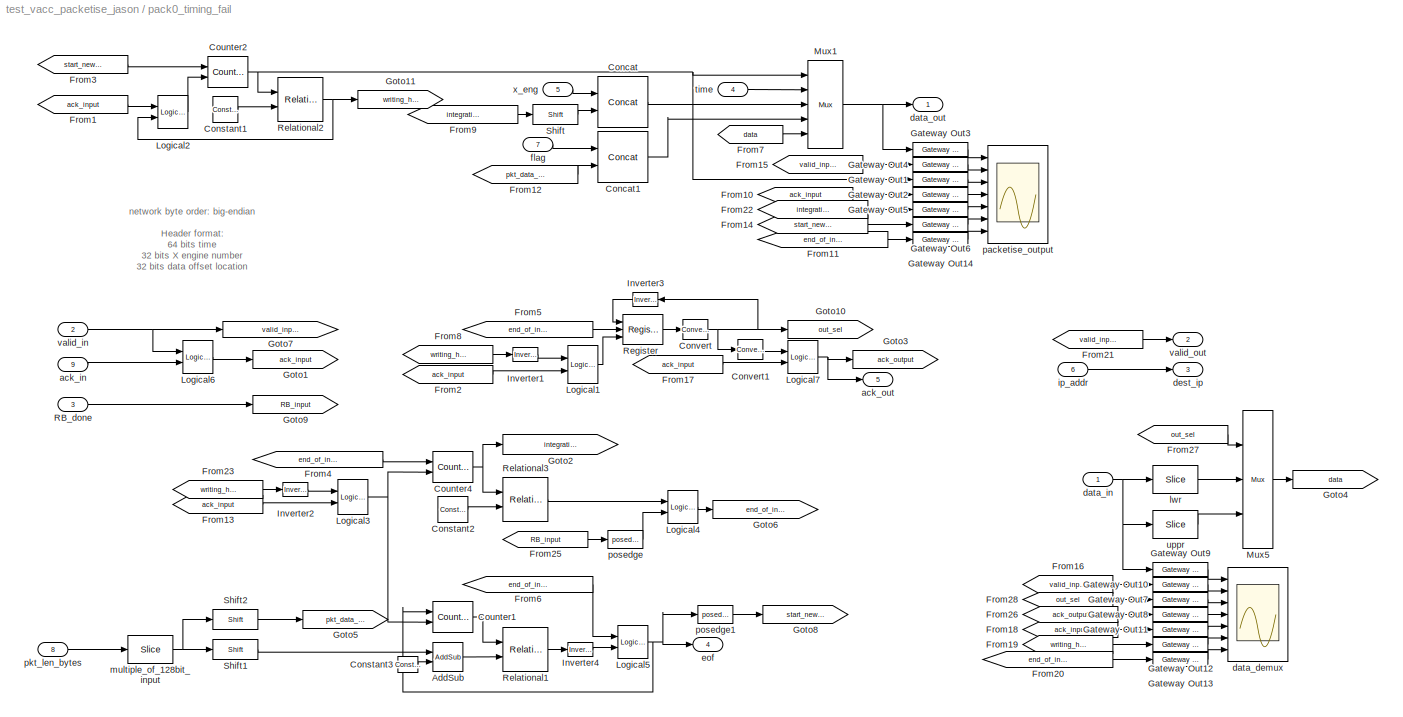
BLOCK [SubSystem] pack0_timing_fail
  MaskEnableString = on
  MaskIconFrame = on
  MaskIconOpaque = on
  MaskIconRotate = none
  MaskIconUnits = autoscale
  MaskPromptString = vector length
  MaskStyleString = edit
  MaskToolTipString = on
  MaskTunableValueString = on
  MaskValueString = 100
  MaskVariables = vector_len=@1;
  MaskVisibilityString = on
  MinAlgLoopOccurrences = off
  Ports = [9, 5]
  RTWSystemCode = Auto
  TreatAsAtomicUnit = off
BLOCK [Reference] pack0_timing_fail/AddSub  REF=xbsIndex_r3/AddSub
  Ports = [2, 1]
  SourceBlock = xbsIndex_r3/AddSub
  SourceType = Xilinx Adder/Subtractor
  arith_type = Unsigned
  bin_pt = 2
  dbl_ovrd = off
  en = off
  explicit_period = on
  gen_core = off
  latency = 2
  mode = Subtraction
  n_bits = 8
  overflow = Wrap
  period = 1
  pipeline = off
  precision = Full
  quantization = Truncate
  show_param = off
  use_carryin = off
  use_carryout = off
  use_core = on
  use_rpm = on
  xl_area = [0, 0, 0, 0, 0, 0, 0]
  xl_use_area = off
BLOCK [Reference] pack0_timing_fail/Concat  REF=xbsIndex_r3/Concat
  Ports = [2, 1]
  SourceBlock = xbsIndex_r3/Concat
  SourceType = Xilinx Bus Concatenator
  dbl_ovrd = off
  explicit_period = off
  num_inputs = 2
  period = 1
BLOCK [Reference] pack0_timing_fail/Concat1  REF=xbsIndex_r3/Concat
  Ports = [2, 1]
  SourceBlock = xbsIndex_r3/Concat
  SourceType = Xilinx Bus Concatenator
  dbl_ovrd = off
  explicit_period = off
  num_inputs = 2
  period = 1
BLOCK [Reference] pack0_timing_fail/Constant1  REF=xbsIndex_r3/Constant
  Ports = [0, 1]
  SourceBlock = xbsIndex_r3/Constant
  SourceType = Xilinx Constant Block
  arith_type = Unsigned
  bin_pt = 0
  carry = CIN
  const = 2
  dbl_ovrd = off
  equ = P=C
  explicit_period = off
  inp1 = P
  inp2 = PCIN>>17
  iostate = 0
  n_bits = 2
  opr = +
  opselect = C
  period = 1
BLOCK [Reference] pack0_timing_fail/Constant2  REF=xbsIndex_r3/Constant
  Ports = [0, 1]
  SourceBlock = xbsIndex_r3/Constant
  SourceType = Xilinx Constant Block
  arith_type = Unsigned
  bin_pt = 0
  carry = CIN
  const = 2*vector_len-1
  dbl_ovrd = off
  equ = P=C
  explicit_period = off
  inp1 = P
  inp2 = PCIN>>17
  iostate = 0
  n_bits = 32
  opr = +
  opselect = C
  period = 1
BLOCK [Reference] pack0_timing_fail/Constant3  REF=xbsIndex_r3/Constant
  Ports = [0, 1]
  SourceBlock = xbsIndex_r3/Constant
  SourceType = Xilinx Constant Block
  arith_type = Unsigned
  bin_pt = 0
  carry = CIN
  const = 2
  dbl_ovrd = off
  equ = P=C
  explicit_period = off
  inp1 = P
  inp2 = PCIN>>17
  iostate = 0
  n_bits = 32
  opr = +
  opselect = C
  period = 1
BLOCK [Reference] pack0_timing_fail/Convert  REF=xbsIndex_r3/Convert
  Ports = [1, 1]
  SourceBlock = xbsIndex_r3/Convert
  SourceType = Xilinx Converter Block
  arith_type = Unsigned
  bin_pt = 0
  dbl_ovrd = off
  explicit_period = off
  inserted_by_tool = off
  latency = 0
  n_bits = 1
  overflow = Wrap
  period = 1
  pipeline = off
  quantization = Truncate
  show_param = off
  xl_area = [0, 0, 0, 0, 0, 0, 0]
  xl_use_area = off
BLOCK [Reference] pack0_timing_fail/Convert1  REF=xbsIndex_r3/Convert
  Ports = [1, 1]
  SourceBlock = xbsIndex_r3/Convert
  SourceType = Xilinx Converter Block
  arith_type = Boolean
  bin_pt = 0
  dbl_ovrd = off
  explicit_period = off
  inserted_by_tool = off
  latency = 0
  n_bits = 1
  overflow = Wrap
  period = 1
  pipeline = off
  quantization = Truncate
  show_param = off
  xl_area = [0, 0, 0, 0, 0, 0, 0]
  xl_use_area = off
BLOCK [Reference] pack0_timing_fail/Counter1  REF=xbsIndex_r3/Counter
  Ports = [2, 1]
  SourceBlock = xbsIndex_r3/Counter
  SourceType = Xilinx Counter Block
  arith_type = Unsigned
  bin_pt = 0
  cnt_by_val = 1
  cnt_to = 1023
  cnt_type = Free Running
  dbl_ovrd = off
  en = on
  explicit_period = on
  gen_core = off
  load_pin = off
  n_bits = 32
  operation = Up
  period = 1
  rst = on
  show_param = off
  start_count = 0
  use_rpm = on
  xl_area = [0, 0, 0, 0, 0, 0, 0]
  xl_use_area = off
BLOCK [Reference] pack0_timing_fail/Counter2  REF=xbsIndex_r3/Counter
  Ports = [2, 1]
  SourceBlock = xbsIndex_r3/Counter
  SourceType = Xilinx Counter Block
  arith_type = Unsigned
  bin_pt = 0
  cnt_by_val = 1
  cnt_to = 1023
  cnt_type = Free Running
  dbl_ovrd = off
  en = on
  explicit_period = on
  gen_core = off
  load_pin = off
  n_bits = 2
  operation = Up
  period = 1
  rst = on
  show_param = off
  start_count = 0
  use_rpm = on
  xl_area = [0, 0, 0, 0, 0, 0, 0]
  xl_use_area = off
BLOCK [Reference] pack0_timing_fail/Counter4  REF=xbsIndex_r3/Counter
  Ports = [2, 1]
  SourceBlock = xbsIndex_r3/Counter
  SourceType = Xilinx Counter Block
  arith_type = Unsigned
  bin_pt = 0
  cnt_by_val = 1
  cnt_to = 1023
  cnt_type = Free Running
  dbl_ovrd = off
  en = on
  explicit_period = on
  gen_core = off
  load_pin = off
  n_bits = 32
  operation = Up
  period = 1
  rst = on
  show_param = off
  start_count = 0
  use_rpm = on
  xl_area = [0, 0, 0, 0, 0, 0, 0]
  xl_use_area = off
BLOCK [From] pack0_timing_fail/From1
  CloseFcn = tagdialog Close
  GotoTag = ack_input
BLOCK [From] pack0_timing_fail/From10
  CloseFcn = tagdialog Close
  GotoTag = ack_input
BLOCK [From] pack0_timing_fail/From11
  CloseFcn = tagdialog Close
  GotoTag = end_of_integration
BLOCK [From] pack0_timing_fail/From12
  CloseFcn = tagdialog Close
  GotoTag = pkt_data_size
BLOCK [From] pack0_timing_fail/From13
  CloseFcn = tagdialog Close
  GotoTag = ack_input
BLOCK [From] pack0_timing_fail/From14
  CloseFcn = tagdialog Close
  GotoTag = start_new_packet
BLOCK [From] pack0_timing_fail/From15
  CloseFcn = tagdialog Close
  GotoTag = valid_input
BLOCK [From] pack0_timing_fail/From16
  CloseFcn = tagdialog Close
  GotoTag = valid_input
BLOCK [From] pack0_timing_fail/From17
  CloseFcn = tagdialog Close
  GotoTag = ack_input
BLOCK [From] pack0_timing_fail/From18
  CloseFcn = tagdialog Close
  GotoTag = ack_input
BLOCK [From] pack0_timing_fail/From19
  CloseFcn = tagdialog Close
  GotoTag = writing_header
BLOCK [From] pack0_timing_fail/From2
  CloseFcn = tagdialog Close
  GotoTag = ack_input
BLOCK [From] pack0_timing_fail/From20
  CloseFcn = tagdialog Close
  GotoTag = end_of_integration
BLOCK [From] pack0_timing_fail/From21
  CloseFcn = tagdialog Close
  GotoTag = valid_input
BLOCK [From] pack0_timing_fail/From22
  CloseFcn = tagdialog Close
  GotoTag = integration_position
BLOCK [From] pack0_timing_fail/From23
  CloseFcn = tagdialog Close
  GotoTag = writing_header
BLOCK [From] pack0_timing_fail/From25
  CloseFcn = tagdialog Close
  GotoTag = RB_input
BLOCK [From] pack0_timing_fail/From26
  CloseFcn = tagdialog Close
  GotoTag = ack_output
BLOCK [From] pack0_timing_fail/From27
  CloseFcn = tagdialog Close
  GotoTag = out_sel
BLOCK [From] pack0_timing_fail/From28
  CloseFcn = tagdialog Close
  GotoTag = out_sel
BLOCK [From] pack0_timing_fail/From3
  CloseFcn = tagdialog Close
  GotoTag = start_new_packet
BLOCK [From] pack0_timing_fail/From4
  CloseFcn = tagdialog Close
  GotoTag = end_of_integration
BLOCK [From] pack0_timing_fail/From5
  CloseFcn = tagdialog Close
  GotoTag = end_of_integration
BLOCK [From] pack0_timing_fail/From6
  CloseFcn = tagdialog Close
  GotoTag = end_of_integration
BLOCK [From] pack0_timing_fail/From7
  CloseFcn = tagdialog Close
  GotoTag = data
BLOCK [From] pack0_timing_fail/From8
  CloseFcn = tagdialog Close
  GotoTag = writing_header
BLOCK [From] pack0_timing_fail/From9
  CloseFcn = tagdialog Close
  GotoTag = integration_position
BLOCK [Reference] pack0_timing_fail/Gateway Out1  REF=xbsIndex_r3/Gateway Out
  LOCs = {}
  Ports = [1, 1]
  SourceBlock = xbsIndex_r3/Gateway Out
  SourceType = Xilinx Gateway Out
  arith_type = Boolean
  bin_pt = 6
  hdl_port = on
  locs_specified = off
  nbits = 8
  needs_fixed_name = off
  output_type = Double
  overflow = Wrap
  quantization = Truncate
  show_param = off
  timing_constraint = None
  xl_area = [0, 0, 0, 0, 0, 0, 0]
  xl_use_area = off
BLOCK [Reference] pack0_timing_fail/Gateway Out10  REF=xbsIndex_r3/Gateway Out
  LOCs = {}
  Ports = [1, 1]
  SourceBlock = xbsIndex_r3/Gateway Out
  SourceType = Xilinx Gateway Out
  arith_type = Boolean
  bin_pt = 6
  hdl_port = on
  locs_specified = off
  nbits = 8
  needs_fixed_name = off
  output_type = Double
  overflow = Wrap
  quantization = Truncate
  show_param = off
  timing_constraint = None
  xl_area = [0, 0, 0, 0, 0, 0, 0]
  xl_use_area = off
BLOCK [Reference] pack0_timing_fail/Gateway Out11  REF=xbsIndex_r3/Gateway Out
  LOCs = {}
  Ports = [1, 1]
  SourceBlock = xbsIndex_r3/Gateway Out
  SourceType = Xilinx Gateway Out
  arith_type = Boolean
  bin_pt = 6
  hdl_port = on
  locs_specified = off
  nbits = 8
  needs_fixed_name = off
  output_type = Double
  overflow = Wrap
  quantization = Truncate
  show_param = off
  timing_constraint = None
  xl_area = [0, 0, 0, 0, 0, 0, 0]
  xl_use_area = off
BLOCK [Reference] pack0_timing_fail/Gateway Out12  REF=xbsIndex_r3/Gateway Out
  LOCs = {}
  Ports = [1, 1]
  SourceBlock = xbsIndex_r3/Gateway Out
  SourceType = Xilinx Gateway Out
  arith_type = Boolean
  bin_pt = 6
  hdl_port = on
  locs_specified = off
  nbits = 8
  needs_fixed_name = off
  output_type = Double
  overflow = Wrap
  quantization = Truncate
  show_param = off
  timing_constraint = None
  xl_area = [0, 0, 0, 0, 0, 0, 0]
  xl_use_area = off
BLOCK [Reference] pack0_timing_fail/Gateway Out13  REF=xbsIndex_r3/Gateway Out
  LOCs = {}
  Ports = [1, 1]
  SourceBlock = xbsIndex_r3/Gateway Out
  SourceType = Xilinx Gateway Out
  arith_type = Boolean
  bin_pt = 6
  hdl_port = on
  locs_specified = off
  nbits = 8
  needs_fixed_name = off
  output_type = Double
  overflow = Wrap
  quantization = Truncate
  show_param = off
  timing_constraint = None
  xl_area = [0, 0, 0, 0, 0, 0, 0]
  xl_use_area = off
BLOCK [Reference] pack0_timing_fail/Gateway Out14  REF=xbsIndex_r3/Gateway Out
  LOCs = {}
  Ports = [1, 1]
  SourceBlock = xbsIndex_r3/Gateway Out
  SourceType = Xilinx Gateway Out
  arith_type = Boolean
  bin_pt = 6
  hdl_port = on
  locs_specified = off
  nbits = 8
  needs_fixed_name = off
  output_type = Double
  overflow = Wrap
  quantization = Truncate
  show_param = off
  timing_constraint = None
  xl_area = [0, 0, 0, 0, 0, 0, 0]
  xl_use_area = off
BLOCK [Reference] pack0_timing_fail/Gateway Out2  REF=xbsIndex_r3/Gateway Out
  LOCs = {}
  Ports = [1, 1]
  SourceBlock = xbsIndex_r3/Gateway Out
  SourceType = Xilinx Gateway Out
  arith_type = Boolean
  bin_pt = 6
  hdl_port = on
  locs_specified = off
  nbits = 8
  needs_fixed_name = off
  output_type = Double
  overflow = Wrap
  quantization = Truncate
  show_param = off
  timing_constraint = None
  xl_area = [0, 0, 0, 0, 0, 0, 0]
  xl_use_area = off
BLOCK [Reference] pack0_timing_fail/Gateway Out3  REF=xbsIndex_r3/Gateway Out
  LOCs = {}
  Ports = [1, 1]
  SourceBlock = xbsIndex_r3/Gateway Out
  SourceType = Xilinx Gateway Out
  arith_type = Boolean
  bin_pt = 6
  hdl_port = on
  locs_specified = off
  nbits = 8
  needs_fixed_name = off
  output_type = Double
  overflow = Wrap
  quantization = Truncate
  show_param = off
  timing_constraint = None
  xl_area = [0, 0, 0, 0, 0, 0, 0]
  xl_use_area = off
BLOCK [Reference] pack0_timing_fail/Gateway Out4  REF=xbsIndex_r3/Gateway Out
  LOCs = {}
  Ports = [1, 1]
  SourceBlock = xbsIndex_r3/Gateway Out
  SourceType = Xilinx Gateway Out
  arith_type = Boolean
  bin_pt = 6
  hdl_port = on
  locs_specified = off
  nbits = 8
  needs_fixed_name = off
  output_type = Double
  overflow = Wrap
  quantization = Truncate
  show_param = off
  timing_constraint = None
  xl_area = [0, 0, 0, 0, 0, 0, 0]
  xl_use_area = off
BLOCK [Reference] pack0_timing_fail/Gateway Out5  REF=xbsIndex_r3/Gateway Out
  LOCs = {}
  Ports = [1, 1]
  SourceBlock = xbsIndex_r3/Gateway Out
  SourceType = Xilinx Gateway Out
  arith_type = Boolean
  bin_pt = 6
  hdl_port = on
  locs_specified = off
  nbits = 8
  needs_fixed_name = off
  output_type = Double
  overflow = Wrap
  quantization = Truncate
  show_param = off
  timing_constraint = None
  xl_area = [0, 0, 0, 0, 0, 0, 0]
  xl_use_area = off
BLOCK [Reference] pack0_timing_fail/Gateway Out6  REF=xbsIndex_r3/Gateway Out
  LOCs = {}
  Ports = [1, 1]
  SourceBlock = xbsIndex_r3/Gateway Out
  SourceType = Xilinx Gateway Out
  arith_type = Boolean
  bin_pt = 6
  hdl_port = on
  locs_specified = off
  nbits = 8
  needs_fixed_name = off
  output_type = Double
  overflow = Wrap
  quantization = Truncate
  show_param = off
  timing_constraint = None
  xl_area = [0, 0, 0, 0, 0, 0, 0]
  xl_use_area = off
BLOCK [Reference] pack0_timing_fail/Gateway Out7  REF=xbsIndex_r3/Gateway Out
  LOCs = {}
  Ports = [1, 1]
  SourceBlock = xbsIndex_r3/Gateway Out
  SourceType = Xilinx Gateway Out
  arith_type = Boolean
  bin_pt = 6
  hdl_port = on
  locs_specified = off
  nbits = 8
  needs_fixed_name = off
  output_type = Double
  overflow = Wrap
  quantization = Truncate
  show_param = off
  timing_constraint = None
  xl_area = [0, 0, 0, 0, 0, 0, 0]
  xl_use_area = off
BLOCK [Reference] pack0_timing_fail/Gateway Out8  REF=xbsIndex_r3/Gateway Out
  LOCs = {}
  Ports = [1, 1]
  SourceBlock = xbsIndex_r3/Gateway Out
  SourceType = Xilinx Gateway Out
  arith_type = Boolean
  bin_pt = 6
  hdl_port = on
  locs_specified = off
  nbits = 8
  needs_fixed_name = off
  output_type = Double
  overflow = Wrap
  quantization = Truncate
  show_param = off
  timing_constraint = None
  xl_area = [0, 0, 0, 0, 0, 0, 0]
  xl_use_area = off
BLOCK [Reference] pack0_timing_fail/Gateway Out9  REF=xbsIndex_r3/Gateway Out
  LOCs = {}
  Ports = [1, 1]
  SourceBlock = xbsIndex_r3/Gateway Out
  SourceType = Xilinx Gateway Out
  arith_type = Boolean
  bin_pt = 6
  hdl_port = on
  locs_specified = off
  nbits = 8
  needs_fixed_name = off
  output_type = Double
  overflow = Wrap
  quantization = Truncate
  show_param = off
  timing_constraint = None
  xl_area = [0, 0, 0, 0, 0, 0, 0]
  xl_use_area = off
BLOCK [Goto] pack0_timing_fail/Goto1
  GotoTag = ack_input
  TagVisibility = local
BLOCK [Goto] pack0_timing_fail/Goto10
  GotoTag = out_sel
  TagVisibility = local
BLOCK [Goto] pack0_timing_fail/Goto11
  GotoTag = writing_header
  TagVisibility = local
BLOCK [Goto] pack0_timing_fail/Goto2
  GotoTag = integration_position
  TagVisibility = local
BLOCK [Goto] pack0_timing_fail/Goto3
  GotoTag = ack_output
  TagVisibility = local
BLOCK [Goto] pack0_timing_fail/Goto4
  GotoTag = data
  TagVisibility = local
BLOCK [Goto] pack0_timing_fail/Goto5
  GotoTag = pkt_data_size
  TagVisibility = local
BLOCK [Goto] pack0_timing_fail/Goto6
  GotoTag = end_of_integration
  TagVisibility = local
BLOCK [Goto] pack0_timing_fail/Goto7
  GotoTag = valid_input
  TagVisibility = local
BLOCK [Goto] pack0_timing_fail/Goto8
  GotoTag = start_new_packet
  TagVisibility = local
BLOCK [Goto] pack0_timing_fail/Goto9
  GotoTag = RB_input
  TagVisibility = local
BLOCK [Reference] pack0_timing_fail/Inverter1  REF=xbsIndex_r3/Inverter
  Ports = [1, 1]
  SourceBlock = xbsIndex_r3/Inverter
  SourceType = Xilinx Inverter
  dbl_ovrd = off
  en = off
  explicit_period = off
  latency = 0
  period = 1
  show_param = off
  xl_area = [0, 0, 0, 0, 0, 0, 0]
  xl_use_area = off
BLOCK [Reference] pack0_timing_fail/Inverter2  REF=xbsIndex_r3/Inverter
  Ports = [1, 1]
  SourceBlock = xbsIndex_r3/Inverter
  SourceType = Xilinx Inverter
  dbl_ovrd = off
  en = off
  explicit_period = off
  latency = 0
  period = 1
  show_param = off
  xl_area = [0, 0, 0, 0, 0, 0, 0]
  xl_use_area = off
BLOCK [Reference] pack0_timing_fail/Inverter3  REF=xbsIndex_r3/Inverter
  Ports = [1, 1]
  SourceBlock = xbsIndex_r3/Inverter
  SourceType = Xilinx Inverter
  dbl_ovrd = off
  en = off
  explicit_period = on
  latency = 0
  period = 1
  show_param = off
  xl_area = [0, 0, 0, 0, 0, 0, 0]
  xl_use_area = off
BLOCK [Reference] pack0_timing_fail/Inverter4  REF=xbsIndex_r3/Inverter
  Ports = [1, 1]
  SourceBlock = xbsIndex_r3/Inverter
  SourceType = Xilinx Inverter
  dbl_ovrd = off
  en = off
  explicit_period = off
  latency = 0
  period = 1
  show_param = off
  xl_area = [0, 0, 0, 0, 0, 0, 0]
  xl_use_area = off
BLOCK [Reference] pack0_timing_fail/Logical1  REF=xbsIndex_r3/Logical
  Ports = [2, 1]
  SourceBlock = xbsIndex_r3/Logical
  SourceType = Xilinx Logical Block
  align_bp = on
  arith_type = Unsigned
  bin_pt = 2
  dbl_ovrd = off
  en = off
  explicit_period = off
  inputs = 2
  latency = 0
  logical_function = AND
  n_bits = 8
  period = 1
  precision = Full
  show_param = off
  xl_area = [0, 0, 0, 0, 0, 0, 0]
  xl_use_area = off
BLOCK [Reference] pack0_timing_fail/Logical2  REF=xbsIndex_r3/Logical
  Ports = [2, 1]
  SourceBlock = xbsIndex_r3/Logical
  SourceType = Xilinx Logical Block
  align_bp = on
  arith_type = Unsigned
  bin_pt = 2
  dbl_ovrd = off
  en = off
  explicit_period = off
  inputs = 2
  latency = 0
  logical_function = AND
  n_bits = 8
  period = 1
  precision = Full
  show_param = off
  xl_area = [0, 0, 0, 0, 0, 0, 0]
  xl_use_area = off
BLOCK [Reference] pack0_timing_fail/Logical3  REF=xbsIndex_r3/Logical
  Ports = [2, 1]
  SourceBlock = xbsIndex_r3/Logical
  SourceType = Xilinx Logical Block
  align_bp = on
  arith_type = Unsigned
  bin_pt = 2
  dbl_ovrd = off
  en = off
  explicit_period = off
  inputs = 2
  latency = 0
  logical_function = AND
  n_bits = 8
  period = 1
  precision = Full
  show_param = off
  xl_area = [0, 0, 0, 0, 0, 0, 0]
  xl_use_area = off
BLOCK [Reference] pack0_timing_fail/Logical4  REF=xbsIndex_r3/Logical
  Ports = [2, 1]
  SourceBlock = xbsIndex_r3/Logical
  SourceType = Xilinx Logical Block
  align_bp = on
  arith_type = Unsigned
  bin_pt = 2
  dbl_ovrd = off
  en = off
  explicit_period = off
  inputs = 2
  latency = 0
  logical_function = OR
  n_bits = 8
  period = 1
  precision = Full
  show_param = off
  xl_area = [0, 0, 0, 0, 0, 0, 0]
  xl_use_area = off
BLOCK [Reference] pack0_timing_fail/Logical5  REF=xbsIndex_r3/Logical
  Ports = [2, 1]
  SourceBlock = xbsIndex_r3/Logical
  SourceType = Xilinx Logical Block
  align_bp = on
  arith_type = Unsigned
  bin_pt = 2
  dbl_ovrd = off
  en = off
  explicit_period = off
  inputs = 2
  latency = 0
  logical_function = OR
  n_bits = 8
  period = 1
  precision = Full
  show_param = off
  xl_area = [0, 0, 0, 0, 0, 0, 0]
  xl_use_area = off
BLOCK [Reference] pack0_timing_fail/Logical6  REF=xbsIndex_r3/Logical
  Ports = [2, 1]
  SourceBlock = xbsIndex_r3/Logical
  SourceType = Xilinx Logical Block
  align_bp = on
  arith_type = Unsigned
  bin_pt = 2
  dbl_ovrd = off
  en = off
  explicit_period = off
  inputs = 2
  latency = 0
  logical_function = AND
  n_bits = 8
  period = 1
  precision = Full
  show_param = off
  xl_area = [0, 0, 0, 0, 0, 0, 0]
  xl_use_area = off
BLOCK [Reference] pack0_timing_fail/Logical7  REF=xbsIndex_r3/Logical
  Ports = [2, 1]
  SourceBlock = xbsIndex_r3/Logical
  SourceType = Xilinx Logical Block
  align_bp = on
  arith_type = Unsigned
  bin_pt = 2
  dbl_ovrd = off
  en = off
  explicit_period = off
  inputs = 2
  latency = 0
  logical_function = AND
  n_bits = 8
  period = 1
  precision = Full
  show_param = off
  xl_area = [0, 0, 0, 0, 0, 0, 0]
  xl_use_area = off
BLOCK [Reference] pack0_timing_fail/Mux1  REF=xbsIndex_r3/Mux
  Ports = [5, 1]
  SourceBlock = xbsIndex_r3/Mux
  SourceType = Xilinx Multiplexer Block
  arith_type = Signed  (2's comp)
  bin_pt = 2
  dbl_ovrd = off
  en = off
  explicit_period = off
  gen_core = off
  inputs = 4
  latency = 0
  mux_type = off
  n_bits = 8
  overflow = Wrap
  period = 1
  precision = Full
  quantization = Truncate
  show_param = off
  use_rpm = off
  xl_area = [0, 0, 0, 0, 0, 0, 0]
  xl_use_area = off
BLOCK [Reference] pack0_timing_fail/Mux5  REF=xbsIndex_r3/Mux
  Ports = [3, 1]
  SourceBlock = xbsIndex_r3/Mux
  SourceType = Xilinx Multiplexer Block
  arith_type = Signed  (2's comp)
  bin_pt = 2
  dbl_ovrd = off
  en = off
  explicit_period = on
  gen_core = off
  inputs = 2
  latency = 0
  mux_type = off
  n_bits = 8
  overflow = Wrap
  period = 1
  precision = Full
  quantization = Truncate
  show_param = off
  use_rpm = off
  xl_area = [0, 0, 0, 0, 0, 0, 0]
  xl_use_area = off
BLOCK [Inport] pack0_timing_fail/RB_done
  IconDisplay = Port number
  LatchInput = off
  Port = 3
BLOCK [Reference] pack0_timing_fail/Register  REF=xbsIndex_r3/Register
  Ports = [3, 1]
  SourceBlock = xbsIndex_r3/Register
  SourceType = Xilinx Register Block
  dbl_ovrd = off
  en = on
  explicit_period = on
  init = 0
  out_en = off
  period = 1
  reg_only_valid = off
  rst = on
  show_param = off
  xl_area = [0, 0, 0, 0, 0, 0, 0]
  xl_use_area = off
BLOCK [Reference] pack0_timing_fail/Relational1  REF=xbsIndex_r3/Relational
  Ports = [2, 1]
  SourceBlock = xbsIndex_r3/Relational
  SourceType = Xilinx Relational Block
  dbl_ovrd = off
  en = off
  explicit_period = off
  latency = 0
  mode = a<=b
  period = 1
  show_param = off
  xl_area = [0, 0, 0, 0, 0, 0, 0]
  xl_use_area = off
BLOCK [Reference] pack0_timing_fail/Relational2  REF=xbsIndex_r3/Relational
  Ports = [2, 1]
  SourceBlock = xbsIndex_r3/Relational
  SourceType = Xilinx Relational Block
  dbl_ovrd = off
  en = off
  explicit_period = off
  latency = 0
  mode = a<=b
  period = 1
  show_param = off
  xl_area = [0, 0, 0, 0, 0, 0, 0]
  xl_use_area = off
BLOCK [Reference] pack0_timing_fail/Relational3  REF=xbsIndex_r3/Relational
  Ports = [2, 1]
  SourceBlock = xbsIndex_r3/Relational
  SourceType = Xilinx Relational Block
  dbl_ovrd = off
  en = off
  explicit_period = off
  latency = 0
  mode = a>=b
  period = 1
  show_param = off
  xl_area = [0, 0, 0, 0, 0, 0, 0]
  xl_use_area = off
BLOCK [Reference] pack0_timing_fail/Shift  REF=xbsIndex_r3/Shift
  Ports = [1, 1]
  SourceBlock = xbsIndex_r3/Shift
  SourceType = Xilinx Shift Block
  arith_type = Signed  (2's comp)
  bin_pt = 2
  dbl_ovrd = off
  en = off
  explicit_period = off
  latency = 0
  n_bits = 8
  overflow = Wrap
  period = 1
  precision = Full
  quantization = Truncate
  shift_bits = 3
  shift_dir = Left
  show_param = off
  xl_area = [0, 0, 0, 0, 0, 0, 0]
  xl_use_area = off
BLOCK [Reference] pack0_timing_fail/Shift1  REF=xbsIndex_r3/Shift
  Ports = [1, 1]
  SourceBlock = xbsIndex_r3/Shift
  SourceType = Xilinx Shift Block
  arith_type = Signed  (2's comp)
  bin_pt = 2
  dbl_ovrd = off
  en = off
  explicit_period = on
  latency = 2
  n_bits = 8
  overflow = Wrap
  period = 1
  precision = Full
  quantization = Truncate
  shift_bits = 1
  shift_dir = Left
  show_param = off
  xl_area = [0, 0, 0, 0, 0, 0, 0]
  xl_use_area = off
BLOCK [Reference] pack0_timing_fail/Shift2  REF=xbsIndex_r3/Shift
  Ports = [1, 1]
  SourceBlock = xbsIndex_r3/Shift
  SourceType = Xilinx Shift Block
  arith_type = Signed  (2's comp)
  bin_pt = 2
  dbl_ovrd = off
  en = off
  explicit_period = on
  latency = 2
  n_bits = 8
  overflow = Wrap
  period = 1
  precision = Full
  quantization = Truncate
  shift_bits = 4
  shift_dir = Left
  show_param = off
  xl_area = [0, 0, 0, 0, 0, 0, 0]
  xl_use_area = off
BLOCK [Inport] pack0_timing_fail/ack_in
  IconDisplay = Port number
  LatchInput = off
  Port = 9
BLOCK [Outport] pack0_timing_fail/ack_out
  BusOutputAsStruct = off
  IconDisplay = Port number
  Port = 5
BLOCK [Scope] pack0_timing_fail/data_demux
  DataFormat = StructureWithTime
  LimitDataPoints = off
  NumInputPorts = 7
  Ports = [7]
  SaveName = ScopeData3
  YMax = 453.6~1~1~1~1~5~5
  YMin = 410.4~-1~-1~-1~0~-5~-5
  ZoomMode = xonly
BLOCK [Inport] pack0_timing_fail/data_in
  IconDisplay = Port number
  LatchInput = off
  Port = 1
BLOCK [Outport] pack0_timing_fail/data_out
  BusOutputAsStruct = off
  IconDisplay = Port number
BLOCK [Outport] pack0_timing_fail/dest_ip
  BusOutputAsStruct = off
  IconDisplay = Port number
  Port = 3
BLOCK [Outport] pack0_timing_fail/eof
  BusOutputAsStruct = off
  IconDisplay = Port number
  Port = 4
BLOCK [Inport] pack0_timing_fail/flag
  IconDisplay = Port number
  LatchInput = off
  Port = 7
BLOCK [Inport] pack0_timing_fail/ip_addr
  IconDisplay = Port number
  LatchInput = off
  Port = 6
BLOCK [Reference] pack0_timing_fail/lwr  REF=xbsIndex_r3/Slice
  Ports = [1, 1]
  SourceBlock = xbsIndex_r3/Slice
  SourceType = Xilinx Slice Block
  base0 = LSB of Input
  base1 = MSB of Input
  bit0 = 0
  bit1 = 0
  boolean_output = off
  dbl_ovrd = off
  explicit_period = off
  mode = Lower Bit Location + Width
  nbits = 64
  period = 1
BLOCK [Reference] pack0_timing_fail/multiple_of_128bit_input  REF=xbsIndex_r3/Slice
  Ports = [1, 1]
  SourceBlock = xbsIndex_r3/Slice
  SourceType = Xilinx Slice Block
  base0 = LSB of Input
  base1 = MSB of Input
  bit0 = 4
  bit1 = 0
  boolean_output = off
  dbl_ovrd = off
  explicit_period = off
  mode = Two Bit Locations
  nbits = 64
  period = 1
BLOCK [Scope] pack0_timing_fail/packetise_output
  DataFormat = StructureWithTime
  LimitDataPoints = off
  NumInputPorts = 7
  Ports = [7]
  YMax = 453.6~1~1~1~1~5~5
  YMin = 410.4~-1~-1~-1~0~-5~-5
  ZoomMode = yonly
BLOCK [Inport] pack0_timing_fail/pkt_len_bytes
  IconDisplay = Port number
  LatchInput = off
  Port = 8
BLOCK [Reference] pack0_timing_fail/posedge  REF=casper_library/Misc/posedge  (lib defined in mdl_138b2fc3435f, mdl_4ed325b712b3, +2 more)
  Ports = [1, 1]
  ShowPortLabels = on
  SourceBlock = casper_library/Misc/posedge
  SourceType = posedge
  Tag = Rising Edge Detector
BLOCK [Reference] pack0_timing_fail/posedge1  REF=casper_library/Misc/posedge  (lib defined in mdl_138b2fc3435f, mdl_4ed325b712b3, +2 more)
  Ports = [1, 1]
  ShowPortLabels = on
  SourceBlock = casper_library/Misc/posedge
  SourceType = posedge
  Tag = Rising Edge Detector
BLOCK [Inport] pack0_timing_fail/time
  IconDisplay = Port number
  LatchInput = off
  Port = 4
BLOCK [Reference] pack0_timing_fail/uppr  REF=xbsIndex_r3/Slice
  Ports = [1, 1]
  SourceBlock = xbsIndex_r3/Slice
  SourceType = Xilinx Slice Block
  base0 = LSB of Input
  base1 = MSB of Input
  bit0 = 0
  bit1 = 0
  boolean_output = off
  dbl_ovrd = off
  explicit_period = off
  mode = Upper Bit Location + Width
  nbits = 64
  period = 1
BLOCK [Inport] pack0_timing_fail/valid_in
  IconDisplay = Port number
  LatchInput = off
  Port = 2
BLOCK [Outport] pack0_timing_fail/valid_out
  BusOutputAsStruct = off
  IconDisplay = Port number
  Port = 2
BLOCK [Inport] pack0_timing_fail/x_eng
  IconDisplay = Port number
  LatchInput = off
  Port = 5
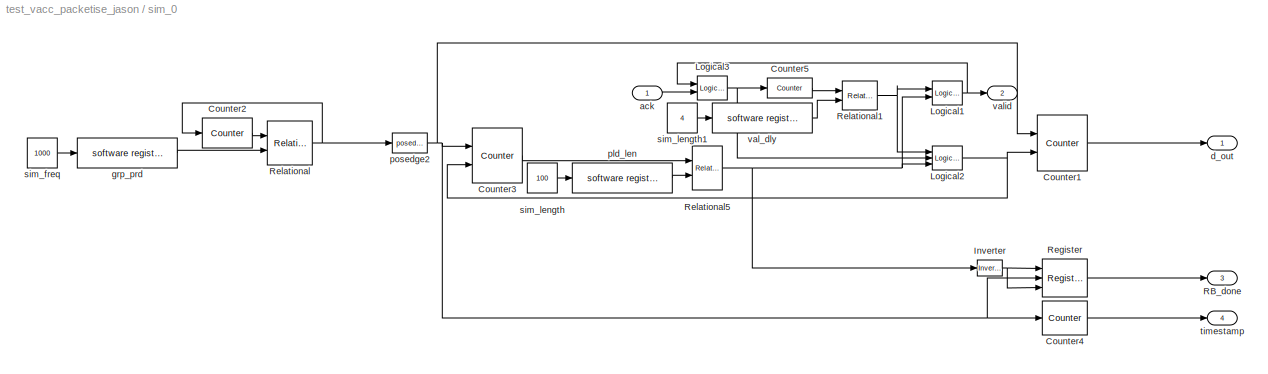
BLOCK [SubSystem] sim_0
  MinAlgLoopOccurrences = off
  Ports = [1, 4]
  RTWSystemCode = Auto
  TreatAsAtomicUnit = off
BLOCK [Reference] sim_0/Counter1  REF=xbsIndex_r3/Counter
  Ports = [2, 1]
  SourceBlock = xbsIndex_r3/Counter
  SourceType = Xilinx Counter Block
  arith_type = Unsigned
  bin_pt = 0
  cnt_by_val = 1
  cnt_to = Inf
  cnt_type = Free Running
  dbl_ovrd = off
  en = on
  explicit_period = off
  gen_core = off
  load_pin = off
  n_bits = 64
  operation = Up
  period = 1
  rst = on
  show_param = off
  start_count = 0
  use_rpm = off
  xl_area = [0, 0, 0, 0, 0, 0, 0]
  xl_use_area = off
BLOCK [Reference] sim_0/Counter2  REF=xbsIndex_r3/Counter
  Ports = [1, 1]
  SourceBlock = xbsIndex_r3/Counter
  SourceType = Xilinx Counter Block
  arith_type = Unsigned
  bin_pt = 0
  cnt_by_val = 1
  cnt_to = Inf
  cnt_type = Free Running
  dbl_ovrd = off
  en = off
  explicit_period = on
  gen_core = off
  load_pin = off
  n_bits = 32
  operation = Up
  period = 1
  rst = on
  show_param = off
  start_count = 1
  use_rpm = on
  xl_area = [0, 0, 0, 0, 0, 0, 0]
  xl_use_area = off
BLOCK [Reference] sim_0/Counter3  REF=xbsIndex_r3/Counter
  Ports = [2, 1]
  SourceBlock = xbsIndex_r3/Counter
  SourceType = Xilinx Counter Block
  arith_type = Unsigned
  bin_pt = 0
  cnt_by_val = 1
  cnt_to = 1023
  cnt_type = Free Running
  dbl_ovrd = off
  en = on
  explicit_period = on
  gen_core = off
  load_pin = off
  n_bits = 32
  operation = Up
  period = 1
  rst = on
  show_param = off
  start_count = 0
  use_rpm = on
  xl_area = [0, 0, 0, 0, 0, 0, 0]
  xl_use_area = off
BLOCK [Reference] sim_0/Counter4  REF=xbsIndex_r3/Counter
  Ports = [1, 1]
  SourceBlock = xbsIndex_r3/Counter
  SourceType = Xilinx Counter Block
  arith_type = Unsigned
  bin_pt = 0
  cnt_by_val = 1
  cnt_to = 1023
  cnt_type = Free Running
  dbl_ovrd = off
  en = on
  explicit_period = on
  gen_core = off
  load_pin = off
  n_bits = 64
  operation = Up
  period = 1
  rst = off
  show_param = off
  start_count = 0
  use_rpm = on
  xl_area = [0, 0, 0, 0, 0, 0, 0]
  xl_use_area = off
BLOCK [Reference] sim_0/Counter5  REF=xbsIndex_r3/Counter
  Ports = [1, 1]
  SourceBlock = xbsIndex_r3/Counter
  SourceType = Xilinx Counter Block
  arith_type = Unsigned
  bin_pt = 0
  cnt_by_val = 1
  cnt_to = 1023
  cnt_type = Free Running
  dbl_ovrd = off
  en = off
  explicit_period = on
  gen_core = off
  load_pin = off
  n_bits = 32
  operation = Up
  period = 1
  rst = on
  show_param = off
  start_count = 0
  use_rpm = on
  xl_area = [0, 0, 0, 0, 0, 0, 0]
  xl_use_area = off
BLOCK [Reference] sim_0/Inverter  REF=xbsIndex_r3/Inverter
  Ports = [1, 1]
  SourceBlock = xbsIndex_r3/Inverter
  SourceType = Xilinx Inverter
  dbl_ovrd = off
  en = off
  explicit_period = off
  latency = 0
  period = 1
  show_param = off
  xl_area = [0, 0, 0, 0, 0, 0, 0]
  xl_use_area = off
BLOCK [Reference] sim_0/Logical1  REF=xbsIndex_r3/Logical
  Ports = [2, 1]
  SourceBlock = xbsIndex_r3/Logical
  SourceType = Xilinx Logical Block
  align_bp = on
  arith_type = Unsigned
  bin_pt = 2
  dbl_ovrd = off
  en = off
  explicit_period = off
  inputs = 2
  latency = 0
  logical_function = AND
  n_bits = 8
  period = 1
  precision = Full
  show_param = off
  xl_area = [0, 0, 0, 0, 0, 0, 0]
  xl_use_area = off
BLOCK [Reference] sim_0/Logical2  REF=xbsIndex_r3/Logical
  Ports = [3, 1]
  SourceBlock = xbsIndex_r3/Logical
  SourceType = Xilinx Logical Block
  align_bp = on
  arith_type = Unsigned
  bin_pt = 2
  dbl_ovrd = off
  en = off
  explicit_period = off
  inputs = 3
  latency = 0
  logical_function = AND
  n_bits = 8
  period = 1
  precision = Full
  show_param = off
  xl_area = [0, 0, 0, 0, 0, 0, 0]
  xl_use_area = off
BLOCK [Reference] sim_0/Logical3  REF=xbsIndex_r3/Logical
  Ports = [2, 1]
  SourceBlock = xbsIndex_r3/Logical
  SourceType = Xilinx Logical Block
  align_bp = on
  arith_type = Unsigned
  bin_pt = 2
  dbl_ovrd = off
  en = off
  explicit_period = off
  inputs = 2
  latency = 0
  logical_function = AND
  n_bits = 8
  period = 1
  precision = Full
  show_param = off
  xl_area = [0, 0, 0, 0, 0, 0, 0]
  xl_use_area = off
BLOCK [Outport] sim_0/RB_done
  BusOutputAsStruct = off
  IconDisplay = Port number
  Port = 3
BLOCK [Reference] sim_0/Register  REF=xbsIndex_r3/Register
  Ports = [3, 1]
  SourceBlock = xbsIndex_r3/Register
  SourceType = Xilinx Register Block
  dbl_ovrd = off
  en = on
  explicit_period = off
  init = 0
  out_en = off
  period = 1
  reg_only_valid = off
  rst = on
  show_param = off
  xl_area = [0, 0, 0, 0, 0, 0, 0]
  xl_use_area = off
BLOCK [Reference] sim_0/Relational  REF=xbsIndex_r3/Relational
  Ports = [2, 1]
  SourceBlock = xbsIndex_r3/Relational
  SourceType = Xilinx Relational Block
  dbl_ovrd = off
  en = off
  explicit_period = on
  latency = 0
  mode = a>=b
  period = 1
  show_param = off
  xl_area = [0, 0, 0, 0, 0, 0, 0]
  xl_use_area = off
BLOCK [Reference] sim_0/Relational1  REF=xbsIndex_r3/Relational
  Ports = [2, 1]
  SourceBlock = xbsIndex_r3/Relational
  SourceType = Xilinx Relational Block
  dbl_ovrd = off
  en = off
  explicit_period = on
  latency = 0
  mode = a>=b
  period = 1
  show_param = off
  xl_area = [0, 0, 0, 0, 0, 0, 0]
  xl_use_area = off
BLOCK [Reference] sim_0/Relational5  REF=xbsIndex_r3/Relational
  Ports = [2, 1]
  SourceBlock = xbsIndex_r3/Relational
  SourceType = Xilinx Relational Block
  dbl_ovrd = off
  en = off
  explicit_period = off
  latency = 0
  mode = a<b
  period = 1
  show_param = off
  xl_area = [0, 0, 0, 0, 0, 0, 0]
  xl_use_area = off
BLOCK [Inport] sim_0/ack
  IconDisplay = Port number
  LatchInput = off
  Port = 1
BLOCK [Outport] sim_0/d_out
  BusOutputAsStruct = off
  IconDisplay = Port number
BLOCK [Reference] sim_0/grp_prd  REF=xps_library/software register  (lib defined in mdl_00b5cec29cd0, mdl_02ab6ecaa3d1, +5 more)
  Ports = [1, 1]
  ShowPortLabels = on
  SourceBlock = xps_library/software register
  Tag = xps:sw_reg
  arith_type = Unsigned
  bin_pt = 0
  bitwidth = 32
  gw_name = test_vacc_packetise_jason_sim_0_grp_prd_user_data_out
  io_dir = From Processor
  sample_period = 1
BLOCK [Reference] sim_0/pld_len  REF=xps_library/software register  (lib defined in mdl_00b5cec29cd0, mdl_02ab6ecaa3d1, +5 more)
  Ports = [1, 1]
  ShowPortLabels = on
  SourceBlock = xps_library/software register
  Tag = xps:sw_reg
  arith_type = Unsigned
  bin_pt = 0
  bitwidth = 32
  gw_name = test_vacc_packetise_jason_sim_0_pld_len_user_data_out
  io_dir = From Processor
  sample_period = 1
BLOCK [Reference] sim_0/posedge2  REF=casper_library/Misc/pulse_ext/posedge  (lib defined in mdl_138b2fc3435f, mdl_4ed325b712b3, +2 more)
  Ports = [1, 1]
  ShowPortLabels = on
  SourceBlock = casper_library/Misc/pulse_ext/posedge
  SourceType = SubSystem
  Tag = Rising Edge Detector
BLOCK [Constant] sim_0/sim_freq
  Value = 1000
BLOCK [Constant] sim_0/sim_length
  Value = 100
BLOCK [Constant] sim_0/sim_length1
  Value = 4
BLOCK [Outport] sim_0/timestamp
  BusOutputAsStruct = off
  IconDisplay = Port number
  Port = 4
BLOCK [Reference] sim_0/val_dly  REF=xps_library/software register  (lib defined in mdl_00b5cec29cd0, mdl_02ab6ecaa3d1, +5 more)
  Ports = [1, 1]
  ShowPortLabels = on
  SourceBlock = xps_library/software register
  Tag = xps:sw_reg
  arith_type = Unsigned
  bin_pt = 0
  bitwidth = 32
  gw_name = test_vacc_packetise_jason_sim_0_val_dly_user_data_out
  io_dir = From Processor
  sample_period = 1
BLOCK [Outport] sim_0/valid
  BusOutputAsStruct = off
  IconDisplay = Port number
  Port = 2
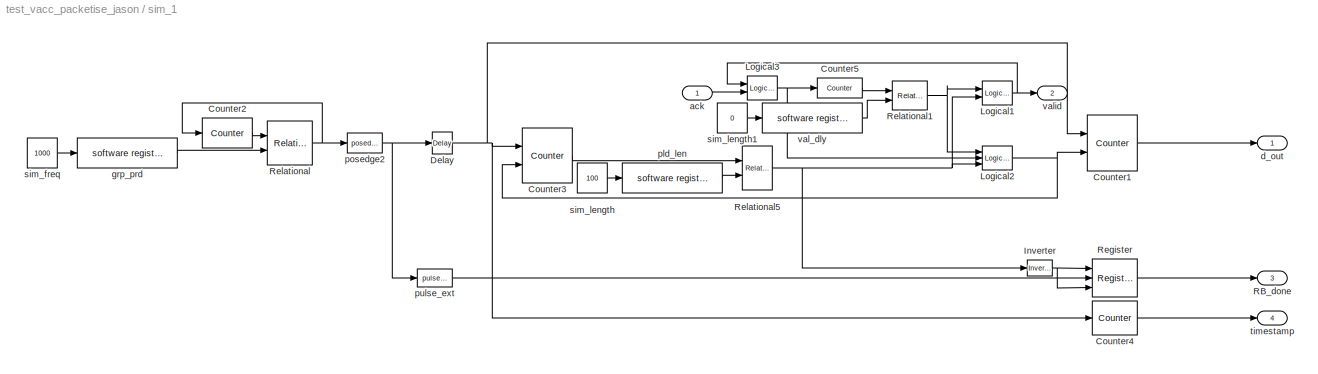
BLOCK [SubSystem] sim_1
  MinAlgLoopOccurrences = off
  Ports = [1, 4]
  RTWSystemCode = Auto
  TreatAsAtomicUnit = off
BLOCK [Reference] sim_1/Counter1  REF=xbsIndex_r3/Counter
  Ports = [2, 1]
  SourceBlock = xbsIndex_r3/Counter
  SourceType = Xilinx Counter Block
  arith_type = Unsigned
  bin_pt = 0
  cnt_by_val = 1
  cnt_to = Inf
  cnt_type = Free Running
  dbl_ovrd = off
  en = on
  explicit_period = off
  gen_core = off
  load_pin = off
  n_bits = 64
  operation = Up
  period = 1
  rst = on
  show_param = off
  start_count = 0
  use_rpm = off
  xl_area = [0, 0, 0, 0, 0, 0, 0]
  xl_use_area = off
BLOCK [Reference] sim_1/Counter2  REF=xbsIndex_r3/Counter
  Ports = [1, 1]
  SourceBlock = xbsIndex_r3/Counter
  SourceType = Xilinx Counter Block
  arith_type = Unsigned
  bin_pt = 0
  cnt_by_val = 1
  cnt_to = Inf
  cnt_type = Free Running
  dbl_ovrd = off
  en = off
  explicit_period = on
  gen_core = off
  load_pin = off
  n_bits = 32
  operation = Up
  period = 1
  rst = on
  show_param = off
  start_count = 1
  use_rpm = on
  xl_area = [0, 0, 0, 0, 0, 0, 0]
  xl_use_area = off
BLOCK [Reference] sim_1/Counter3  REF=xbsIndex_r3/Counter
  Ports = [2, 1]
  SourceBlock = xbsIndex_r3/Counter
  SourceType = Xilinx Counter Block
  arith_type = Unsigned
  bin_pt = 0
  cnt_by_val = 1
  cnt_to = 1023
  cnt_type = Free Running
  dbl_ovrd = off
  en = on
  explicit_period = on
  gen_core = off
  load_pin = off
  n_bits = 32
  operation = Up
  period = 1
  rst = on
  show_param = off
  start_count = 0
  use_rpm = on
  xl_area = [0, 0, 0, 0, 0, 0, 0]
  xl_use_area = off
BLOCK [Reference] sim_1/Counter4  REF=xbsIndex_r3/Counter
  Ports = [1, 1]
  SourceBlock = xbsIndex_r3/Counter
  SourceType = Xilinx Counter Block
  arith_type = Unsigned
  bin_pt = 0
  cnt_by_val = 1
  cnt_to = 1023
  cnt_type = Free Running
  dbl_ovrd = off
  en = on
  explicit_period = on
  gen_core = off
  load_pin = off
  n_bits = 64
  operation = Up
  period = 1
  rst = off
  show_param = off
  start_count = 0
  use_rpm = on
  xl_area = [0, 0, 0, 0, 0, 0, 0]
  xl_use_area = off
BLOCK [Reference] sim_1/Counter5  REF=xbsIndex_r3/Counter
  Ports = [1, 1]
  SourceBlock = xbsIndex_r3/Counter
  SourceType = Xilinx Counter Block
  arith_type = Unsigned
  bin_pt = 0
  cnt_by_val = 1
  cnt_to = 1023
  cnt_type = Free Running
  dbl_ovrd = off
  en = off
  explicit_period = on
  gen_core = off
  load_pin = off
  n_bits = 32
  operation = Up
  period = 1
  rst = on
  show_param = off
  start_count = 0
  use_rpm = on
  xl_area = [0, 0, 0, 0, 0, 0, 0]
  xl_use_area = off
BLOCK [Reference] sim_1/Delay  REF=xbsIndex_r3/Delay
  Ports = [1, 1]
  SourceBlock = xbsIndex_r3/Delay
  SourceType = Xilinx Delay Block
  accept_only_valid = off
  dbl_ovrd = off
  en = off
  explicit_period = off
  init_zero = on
  latency = 4
  period = 1
  reg_retiming = on
  show_param = off
  xl_area = [0, 0, 0, 0, 0, 0, 0]
  xl_use_area = off
BLOCK [Reference] sim_1/Inverter  REF=xbsIndex_r3/Inverter
  Ports = [1, 1]
  SourceBlock = xbsIndex_r3/Inverter
  SourceType = Xilinx Inverter
  dbl_ovrd = off
  en = off
  explicit_period = off
  latency = 0
  period = 1
  show_param = off
  xl_area = [0, 0, 0, 0, 0, 0, 0]
  xl_use_area = off
BLOCK [Reference] sim_1/Logical1  REF=xbsIndex_r3/Logical
  Ports = [2, 1]
  SourceBlock = xbsIndex_r3/Logical
  SourceType = Xilinx Logical Block
  align_bp = on
  arith_type = Unsigned
  bin_pt = 2
  dbl_ovrd = off
  en = off
  explicit_period = off
  inputs = 2
  latency = 0
  logical_function = AND
  n_bits = 8
  period = 1
  precision = Full
  show_param = off
  xl_area = [0, 0, 0, 0, 0, 0, 0]
  xl_use_area = off
BLOCK [Reference] sim_1/Logical2  REF=xbsIndex_r3/Logical
  Ports = [3, 1]
  SourceBlock = xbsIndex_r3/Logical
  SourceType = Xilinx Logical Block
  align_bp = on
  arith_type = Unsigned
  bin_pt = 2
  dbl_ovrd = off
  en = off
  explicit_period = off
  inputs = 3
  latency = 0
  logical_function = AND
  n_bits = 8
  period = 1
  precision = Full
  show_param = off
  xl_area = [0, 0, 0, 0, 0, 0, 0]
  xl_use_area = off
BLOCK [Reference] sim_1/Logical3  REF=xbsIndex_r3/Logical
  Ports = [2, 1]
  SourceBlock = xbsIndex_r3/Logical
  SourceType = Xilinx Logical Block
  align_bp = on
  arith_type = Unsigned
  bin_pt = 2
  dbl_ovrd = off
  en = off
  explicit_period = off
  inputs = 2
  latency = 0
  logical_function = AND
  n_bits = 8
  period = 1
  precision = Full
  show_param = off
  xl_area = [0, 0, 0, 0, 0, 0, 0]
  xl_use_area = off
BLOCK [Outport] sim_1/RB_done
  BusOutputAsStruct = off
  IconDisplay = Port number
  Port = 3
BLOCK [Reference] sim_1/Register  REF=xbsIndex_r3/Register
  Ports = [3, 1]
  SourceBlock = xbsIndex_r3/Register
  SourceType = Xilinx Register Block
  dbl_ovrd = off
  en = on
  explicit_period = off
  init = 0
  out_en = off
  period = 1
  reg_only_valid = off
  rst = on
  show_param = off
  xl_area = [0, 0, 0, 0, 0, 0, 0]
  xl_use_area = off
BLOCK [Reference] sim_1/Relational  REF=xbsIndex_r3/Relational
  Ports = [2, 1]
  SourceBlock = xbsIndex_r3/Relational
  SourceType = Xilinx Relational Block
  dbl_ovrd = off
  en = off
  explicit_period = on
  latency = 0
  mode = a>=b
  period = 1
  show_param = off
  xl_area = [0, 0, 0, 0, 0, 0, 0]
  xl_use_area = off
BLOCK [Reference] sim_1/Relational1  REF=xbsIndex_r3/Relational
  Ports = [2, 1]
  SourceBlock = xbsIndex_r3/Relational
  SourceType = Xilinx Relational Block
  dbl_ovrd = off
  en = off
  explicit_period = on
  latency = 0
  mode = a>=b
  period = 1
  show_param = off
  xl_area = [0, 0, 0, 0, 0, 0, 0]
  xl_use_area = off
BLOCK [Reference] sim_1/Relational5  REF=xbsIndex_r3/Relational
  Ports = [2, 1]
  SourceBlock = xbsIndex_r3/Relational
  SourceType = Xilinx Relational Block
  dbl_ovrd = off
  en = off
  explicit_period = off
  latency = 0
  mode = a<b
  period = 1
  show_param = off
  xl_area = [0, 0, 0, 0, 0, 0, 0]
  xl_use_area = off
BLOCK [Inport] sim_1/ack
  IconDisplay = Port number
  LatchInput = off
  Port = 1
BLOCK [Outport] sim_1/d_out
  BusOutputAsStruct = off
  IconDisplay = Port number
BLOCK [Reference] sim_1/grp_prd  REF=xps_library/software register  (lib defined in mdl_00b5cec29cd0, mdl_02ab6ecaa3d1, +5 more)
  Ports = [1, 1]
  ShowPortLabels = on
  SourceBlock = xps_library/software register
  Tag = xps:sw_reg
  arith_type = Unsigned
  bin_pt = 0
  bitwidth = 32
  gw_name = test_vacc_packetise_jason_sim_1_grp_prd_user_data_out
  io_dir = From Processor
  sample_period = 1
BLOCK [Reference] sim_1/pld_len  REF=xps_library/software register  (lib defined in mdl_00b5cec29cd0, mdl_02ab6ecaa3d1, +5 more)
  Ports = [1, 1]
  ShowPortLabels = on
  SourceBlock = xps_library/software register
  Tag = xps:sw_reg
  arith_type = Unsigned
  bin_pt = 0
  bitwidth = 32
  gw_name = test_vacc_packetise_jason_sim_1_pld_len_user_data_out
  io_dir = From Processor
  sample_period = 1
BLOCK [Reference] sim_1/posedge2  REF=casper_library/Misc/pulse_ext/posedge  (lib defined in mdl_138b2fc3435f, mdl_4ed325b712b3, +2 more)
  Ports = [1, 1]
  ShowPortLabels = on
  SourceBlock = casper_library/Misc/pulse_ext/posedge
  SourceType = SubSystem
  Tag = Rising Edge Detector
BLOCK [Reference] sim_1/pulse_ext  REF=casper_library/Misc/pulse_ext  (lib defined in mdl_138b2fc3435f, mdl_4ed325b712b3, +2 more)
  Ports = [1, 1]
  ShowPortLabels = on
  SourceBlock = casper_library/Misc/pulse_ext
  SourceType = pulse_ext
  pulse_len = 5
BLOCK [Constant] sim_1/sim_freq
  Value = 1000
BLOCK [Constant] sim_1/sim_length
  Value = 100
BLOCK [Constant] sim_1/sim_length1
  Value = 0
BLOCK [Outport] sim_1/timestamp
  BusOutputAsStruct = off
  IconDisplay = Port number
  Port = 4
BLOCK [Reference] sim_1/val_dly  REF=xps_library/software register  (lib defined in mdl_00b5cec29cd0, mdl_02ab6ecaa3d1, +5 more)
  Ports = [1, 1]
  ShowPortLabels = on
  SourceBlock = xps_library/software register
  Tag = xps:sw_reg
  arith_type = Unsigned
  bin_pt = 0
  bitwidth = 32
  gw_name = test_vacc_packetise_jason_sim_1_val_dly_user_data_out
  io_dir = From Processor
  sample_period = 1
BLOCK [Outport] sim_1/valid
  BusOutputAsStruct = off
  IconDisplay = Port number
  Port = 2
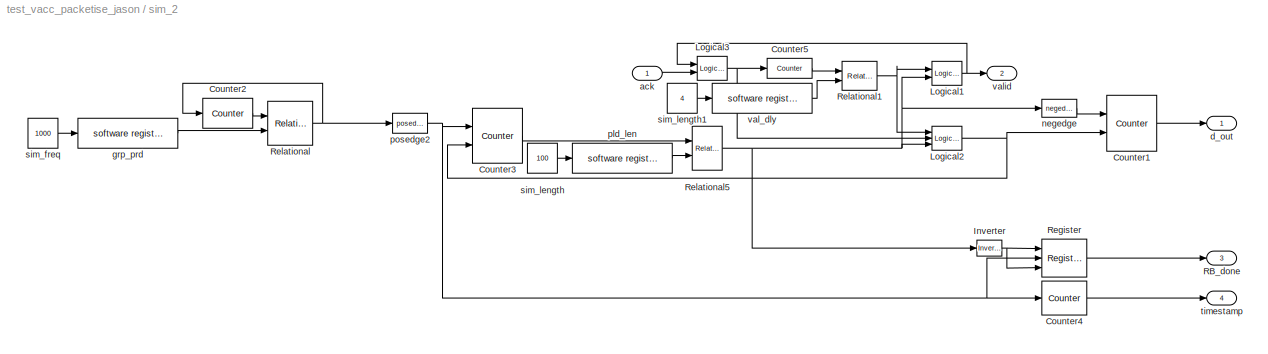
BLOCK [SubSystem] sim_2
  MinAlgLoopOccurrences = off
  Ports = [1, 4]
  RTWSystemCode = Auto
  TreatAsAtomicUnit = off
BLOCK [Reference] sim_2/Counter1  REF=xbsIndex_r3/Counter
  Ports = [2, 1]
  SourceBlock = xbsIndex_r3/Counter
  SourceType = Xilinx Counter Block
  arith_type = Unsigned
  bin_pt = 0
  cnt_by_val = 1
  cnt_to = Inf
  cnt_type = Free Running
  dbl_ovrd = off
  en = on
  explicit_period = off
  gen_core = off
  load_pin = off
  n_bits = 64
  operation = Up
  period = 1
  rst = on
  show_param = off
  start_count = 0
  use_rpm = off
  xl_area = [0, 0, 0, 0, 0, 0, 0]
  xl_use_area = off
BLOCK [Reference] sim_2/Counter2  REF=xbsIndex_r3/Counter
  Ports = [1, 1]
  SourceBlock = xbsIndex_r3/Counter
  SourceType = Xilinx Counter Block
  arith_type = Unsigned
  bin_pt = 0
  cnt_by_val = 1
  cnt_to = Inf
  cnt_type = Free Running
  dbl_ovrd = off
  en = off
  explicit_period = on
  gen_core = off
  load_pin = off
  n_bits = 32
  operation = Up
  period = 1
  rst = on
  show_param = off
  start_count = 1
  use_rpm = on
  xl_area = [0, 0, 0, 0, 0, 0, 0]
  xl_use_area = off
BLOCK [Reference] sim_2/Counter3  REF=xbsIndex_r3/Counter
  Ports = [2, 1]
  SourceBlock = xbsIndex_r3/Counter
  SourceType = Xilinx Counter Block
  arith_type = Unsigned
  bin_pt = 0
  cnt_by_val = 1
  cnt_to = 1023
  cnt_type = Free Running
  dbl_ovrd = off
  en = on
  explicit_period = on
  gen_core = off
  load_pin = off
  n_bits = 32
  operation = Up
  period = 1
  rst = on
  show_param = off
  start_count = 0
  use_rpm = on
  xl_area = [0, 0, 0, 0, 0, 0, 0]
  xl_use_area = off
BLOCK [Reference] sim_2/Counter4  REF=xbsIndex_r3/Counter
  Ports = [1, 1]
  SourceBlock = xbsIndex_r3/Counter
  SourceType = Xilinx Counter Block
  arith_type = Unsigned
  bin_pt = 0
  cnt_by_val = 1
  cnt_to = 1023
  cnt_type = Free Running
  dbl_ovrd = off
  en = on
  explicit_period = on
  gen_core = off
  load_pin = off
  n_bits = 64
  operation = Up
  period = 1
  rst = off
  show_param = off
  start_count = 0
  use_rpm = on
  xl_area = [0, 0, 0, 0, 0, 0, 0]
  xl_use_area = off
BLOCK [Reference] sim_2/Counter5  REF=xbsIndex_r3/Counter
  Ports = [1, 1]
  SourceBlock = xbsIndex_r3/Counter
  SourceType = Xilinx Counter Block
  arith_type = Unsigned
  bin_pt = 0
  cnt_by_val = 1
  cnt_to = 1023
  cnt_type = Free Running
  dbl_ovrd = off
  en = off
  explicit_period = on
  gen_core = off
  load_pin = off
  n_bits = 32
  operation = Up
  period = 1
  rst = on
  show_param = off
  start_count = 0
  use_rpm = on
  xl_area = [0, 0, 0, 0, 0, 0, 0]
  xl_use_area = off
BLOCK [Reference] sim_2/Inverter  REF=xbsIndex_r3/Inverter
  Ports = [1, 1]
  SourceBlock = xbsIndex_r3/Inverter
  SourceType = Xilinx Inverter
  dbl_ovrd = off
  en = off
  explicit_period = off
  latency = 0
  period = 1
  show_param = off
  xl_area = [0, 0, 0, 0, 0, 0, 0]
  xl_use_area = off
BLOCK [Reference] sim_2/Logical1  REF=xbsIndex_r3/Logical
  Ports = [2, 1]
  SourceBlock = xbsIndex_r3/Logical
  SourceType = Xilinx Logical Block
  align_bp = on
  arith_type = Unsigned
  bin_pt = 2
  dbl_ovrd = off
  en = off
  explicit_period = off
  inputs = 2
  latency = 0
  logical_function = AND
  n_bits = 8
  period = 1
  precision = Full
  show_param = off
  xl_area = [0, 0, 0, 0, 0, 0, 0]
  xl_use_area = off
BLOCK [Reference] sim_2/Logical2  REF=xbsIndex_r3/Logical
  Ports = [3, 1]
  SourceBlock = xbsIndex_r3/Logical
  SourceType = Xilinx Logical Block
  align_bp = on
  arith_type = Unsigned
  bin_pt = 2
  dbl_ovrd = off
  en = off
  explicit_period = off
  inputs = 3
  latency = 0
  logical_function = AND
  n_bits = 8
  period = 1
  precision = Full
  show_param = off
  xl_area = [0, 0, 0, 0, 0, 0, 0]
  xl_use_area = off
BLOCK [Reference] sim_2/Logical3  REF=xbsIndex_r3/Logical
  Ports = [2, 1]
  SourceBlock = xbsIndex_r3/Logical
  SourceType = Xilinx Logical Block
  align_bp = on
  arith_type = Unsigned
  bin_pt = 2
  dbl_ovrd = off
  en = off
  explicit_period = off
  inputs = 2
  latency = 0
  logical_function = AND
  n_bits = 8
  period = 1
  precision = Full
  show_param = off
  xl_area = [0, 0, 0, 0, 0, 0, 0]
  xl_use_area = off
BLOCK [Outport] sim_2/RB_done
  BusOutputAsStruct = off
  IconDisplay = Port number
  Port = 3
BLOCK [Reference] sim_2/Register  REF=xbsIndex_r3/Register
  Ports = [3, 1]
  SourceBlock = xbsIndex_r3/Register
  SourceType = Xilinx Register Block
  dbl_ovrd = off
  en = on
  explicit_period = off
  init = 0
  out_en = off
  period = 1
  reg_only_valid = off
  rst = on
  show_param = off
  xl_area = [0, 0, 0, 0, 0, 0, 0]
  xl_use_area = off
BLOCK [Reference] sim_2/Relational  REF=xbsIndex_r3/Relational
  Ports = [2, 1]
  SourceBlock = xbsIndex_r3/Relational
  SourceType = Xilinx Relational Block
  dbl_ovrd = off
  en = off
  explicit_period = on
  latency = 0
  mode = a>=b
  period = 1
  show_param = off
  xl_area = [0, 0, 0, 0, 0, 0, 0]
  xl_use_area = off
BLOCK [Reference] sim_2/Relational1  REF=xbsIndex_r3/Relational
  Ports = [2, 1]
  SourceBlock = xbsIndex_r3/Relational
  SourceType = Xilinx Relational Block
  dbl_ovrd = off
  en = off
  explicit_period = on
  latency = 0
  mode = a>=b
  period = 1
  show_param = off
  xl_area = [0, 0, 0, 0, 0, 0, 0]
  xl_use_area = off
BLOCK [Reference] sim_2/Relational5  REF=xbsIndex_r3/Relational
  Ports = [2, 1]
  SourceBlock = xbsIndex_r3/Relational
  SourceType = Xilinx Relational Block
  dbl_ovrd = off
  en = off
  explicit_period = off
  latency = 0
  mode = a<b
  period = 1
  show_param = off
  xl_area = [0, 0, 0, 0, 0, 0, 0]
  xl_use_area = off
BLOCK [Inport] sim_2/ack
  IconDisplay = Port number
  LatchInput = off
  Port = 1
BLOCK [Outport] sim_2/d_out
  BusOutputAsStruct = off
  IconDisplay = Port number
BLOCK [Reference] sim_2/grp_prd  REF=xps_library/software register  (lib defined in mdl_00b5cec29cd0, mdl_02ab6ecaa3d1, +5 more)
  Ports = [1, 1]
  ShowPortLabels = on
  SourceBlock = xps_library/software register
  Tag = xps:sw_reg
  arith_type = Unsigned
  bin_pt = 0
  bitwidth = 32
  gw_name = test_vacc_packetise_jason_sim_2_grp_prd_user_data_out
  io_dir = From Processor
  sample_period = 1
BLOCK [Reference] sim_2/negedge  REF=casper_library/Misc/negedge  (lib defined in mdl_138b2fc3435f, mdl_4ed325b712b3, +2 more)
  Ports = [1, 1]
  ShowPortLabels = on
  SourceBlock = casper_library/Misc/negedge
  SourceType = negedge
  Tag = Rising Edge Detector
BLOCK [Reference] sim_2/pld_len  REF=xps_library/software register  (lib defined in mdl_00b5cec29cd0, mdl_02ab6ecaa3d1, +5 more)
  Ports = [1, 1]
  ShowPortLabels = on
  SourceBlock = xps_library/software register
  Tag = xps:sw_reg
  arith_type = Unsigned
  bin_pt = 0
  bitwidth = 32
  gw_name = test_vacc_packetise_jason_sim_2_pld_len_user_data_out
  io_dir = From Processor
  sample_period = 1
BLOCK [Reference] sim_2/posedge2  REF=casper_library/Misc/pulse_ext/posedge  (lib defined in mdl_138b2fc3435f, mdl_4ed325b712b3, +2 more)
  Ports = [1, 1]
  ShowPortLabels = on
  SourceBlock = casper_library/Misc/pulse_ext/posedge
  SourceType = SubSystem
  Tag = Rising Edge Detector
BLOCK [Constant] sim_2/sim_freq
  Value = 1000
BLOCK [Constant] sim_2/sim_length
  Value = 100
BLOCK [Constant] sim_2/sim_length1
  Value = 4
BLOCK [Outport] sim_2/timestamp
  BusOutputAsStruct = off
  IconDisplay = Port number
  Port = 4
BLOCK [Reference] sim_2/val_dly  REF=xps_library/software register  (lib defined in mdl_00b5cec29cd0, mdl_02ab6ecaa3d1, +5 more)
  Ports = [1, 1]
  ShowPortLabels = on
  SourceBlock = xps_library/software register
  Tag = xps:sw_reg
  arith_type = Unsigned
  bin_pt = 0
  bitwidth = 32
  gw_name = test_vacc_packetise_jason_sim_2_val_dly_user_data_out
  io_dir = From Processor
  sample_period = 1
BLOCK [Outport] sim_2/valid
  BusOutputAsStruct = off
  IconDisplay = Port number
  Port = 2
BLOCK [Scope] sim_data
  DataFormat = StructureWithTime
  LimitDataPoints = off
  NumInputPorts = 5
  Ports = [5]
  SaveName = ScopeData1
  YMax = 450~1~1~7~1
  YMin = 0~0~0~5~0
  ZoomMode = xonly
BLOCK [Scope] sim_data1
  DataFormat = StructureWithTime
  LimitDataPoints = off
  NumInputPorts = 5
  Ports = [5]
  SaveName = ScopeData5
  YMax = 450~1~1~7~1
  YMin = 0~0~0~5~0
  ZoomMode = xonly
ANNOTATION pack0_no_backpressure1: Assumes 128bit words out of VACC
ANNOTATION pack0_no_backpressure1: network byte order: big-endian\n\nHeader format:\n64 bits time\n32 bits X engine number\n32 bits data offset location\n32 bits flags\n32 bits data length (bytes)\n
ANNOTATION pack0_timing_fail: network byte order: big-endian\n\nHeader format:\n64 bits time\n32 bits X engine number\n32 bits data offset location\n32 bits flags\n32 bits data length (bytes)\n
LINE Constant10:1 -> pack0_timing_fail:6
LINE Constant1:1 -> pack0_timing_fail:9
LINE Constant3:1 -> pack0_no_backpressure1:6
LINE Constant4:1 -> pack0_timing_fail:7
LINE Constant5:1 -> pack0_no_backpressure1:7
LINE Constant6:1 -> pack0_no_backpressure1:5
LINE Constant7:1 -> pack0_no_backpressure1:8
LINE Constant8:1 -> pack0_timing_fail:5
LINE Constant9:1 -> pack0_timing_fail:8
LINE Gateway Out10:1 -> sim_data1:2
LINE Gateway Out11:1 -> sim_data1:5
LINE Gateway Out12:1 -> sim_data:1
LINE Gateway Out13:1 -> sim_data:2
LINE Gateway Out14:1 -> sim_data:5
LINE Gateway Out15:1 -> Scope2:4
LINE Gateway Out16:1 -> Scope2:1
LINE Gateway Out17:1 -> Scope2:2
LINE Gateway Out18:1 -> Scope2:5
LINE Gateway Out19:1 -> sim_data1:3
LINE Gateway Out1:1 -> Scope1:3
LINE Gateway Out20:1 -> sim_data1:4
LINE Gateway Out2:1 -> Scope1:4
LINE Gateway Out3:1 -> Scope1:1
LINE Gateway Out4:1 -> Scope1:2
LINE Gateway Out5:1 -> Scope1:5
LINE Gateway Out6:1 -> sim_data:3
LINE Gateway Out7:1 -> sim_data:4
LINE Gateway Out8:1 -> Scope2:3
LINE Gateway Out9:1 -> sim_data1:1
LINE pack0_no_backpressure1/AddSub:1 -> pack0_no_backpressure1/Relational1:2
LINE pack0_no_backpressure1/Concat1:1 -> pack0_no_backpressure1/Mux1:4
LINE pack0_no_backpressure1/Concat2:1 -> pack0_no_backpressure1/Goto5:1
LINE pack0_no_backpressure1/Concat3:1 -> pack0_no_backpressure1/Mux2:3
LINE pack0_no_backpressure1/Concat4:1 -> pack0_no_backpressure1/Mux2:2
LINE pack0_no_backpressure1/Concat:1 -> pack0_no_backpressure1/Mux1:3
LINE pack0_no_backpressure1/Constant1:1 -> pack0_no_backpressure1/Relational2:2
LINE pack0_no_backpressure1/Constant2:1 -> pack0_no_backpressure1/Concat3:1
LINE pack0_no_backpressure1/Constant3:1 -> pack0_no_backpressure1/AddSub:2
LINE pack0_no_backpressure1/Constant4:1 -> pack0_no_backpressure1/Relational3:2
LINE pack0_no_backpressure1/Constant6:1 -> pack0_no_backpressure1/Concat4:1
LINE pack0_no_backpressure1/Constant7:1 -> pack0_no_backpressure1/Concat2:1
LINE pack0_no_backpressure1/Constant8:1 -> pack0_no_backpressure1/Mux1:5
NET pack0_no_backpressure1/Counter1:1 -> pack0_no_backpressure1/Relational1:1, pack0_no_backpressure1/Relational2:1, pack0_no_backpressure1/lsb:1, pack0_no_backpressure1/lwr_2bits:1
NET pack0_no_backpressure1/Counter4:1 -> pack0_no_backpressure1/Goto2:1, pack0_no_backpressure1/Relational3:1
LINE pack0_no_backpressure1/From11:1 -> pack0_no_backpressure1/Gateway Out14:1
LINE pack0_no_backpressure1/From12:1 -> pack0_no_backpressure1/Concat1:2
LINE pack0_no_backpressure1/From13:1 -> pack0_no_backpressure1/Counter4:2
LINE pack0_no_backpressure1/From14:1 -> pack0_no_backpressure1/Gateway Out6:1
LINE pack0_no_backpressure1/From15:1 -> pack0_no_backpressure1/Gateway Out4:1
LINE pack0_no_backpressure1/From1:1 -> pack0_no_backpressure1/lsb2:1
LINE pack0_no_backpressure1/From21:1 -> pack0_no_backpressure1/valid_out:1
LINE pack0_no_backpressure1/From22:1 -> pack0_no_backpressure1/Gateway Out5:1
LINE pack0_no_backpressure1/From24:1 -> pack0_no_backpressure1/Counter1:2
LINE pack0_no_backpressure1/From29:1 -> pack0_no_backpressure1/Counter1:1
LINE pack0_no_backpressure1/From2:1 -> pack0_no_backpressure1/Gateway Out1:1
LINE pack0_no_backpressure1/From30:1 -> pack0_no_backpressure1/eof:1
LINE pack0_no_backpressure1/From31:1 -> pack0_no_backpressure1/Mux1:1
LINE pack0_no_backpressure1/From3:1 -> pack0_no_backpressure1/Gateway Out2:1
LINE pack0_no_backpressure1/From4:1 -> pack0_no_backpressure1/Counter4:1
LINE pack0_no_backpressure1/From5:1 -> pack0_no_backpressure1/Gateway Out3:1
LINE pack0_no_backpressure1/From6:1 -> pack0_no_backpressure1/Logical5:1
LINE pack0_no_backpressure1/From7:1 -> pack0_no_backpressure1/Inverter1:1
LINE pack0_no_backpressure1/From9:1 -> pack0_no_backpressure1/Shift:1
LINE pack0_no_backpressure1/Gateway Out14:1 -> pack0_no_backpressure1/packetise_output:7
LINE pack0_no_backpressure1/Gateway Out1:1 -> pack0_no_backpressure1/packetise_output:3
LINE pack0_no_backpressure1/Gateway Out2:1 -> pack0_no_backpressure1/packetise_output:4
LINE pack0_no_backpressure1/Gateway Out3:1 -> pack0_no_backpressure1/packetise_output:1
LINE pack0_no_backpressure1/Gateway Out4:1 -> pack0_no_backpressure1/packetise_output:2
LINE pack0_no_backpressure1/Gateway Out5:1 -> pack0_no_backpressure1/packetise_output:5
LINE pack0_no_backpressure1/Gateway Out6:1 -> pack0_no_backpressure1/packetise_output:6
LINE pack0_no_backpressure1/Inverter1:1 -> pack0_no_backpressure1/Logical1:1
LINE pack0_no_backpressure1/Inverter3:1 -> pack0_no_backpressure1/Concat4:2
LINE pack0_no_backpressure1/Inverter4:1 -> pack0_no_backpressure1/Logical5:2
NET pack0_no_backpressure1/Logical1:1 -> pack0_no_backpressure1/Goto3:1, pack0_no_backpressure1/ack_out:1
LINE pack0_no_backpressure1/Logical4:1 -> pack0_no_backpressure1/Goto9:1
LINE pack0_no_backpressure1/Logical5:1 -> pack0_no_backpressure1/Goto8:1
NET pack0_no_backpressure1/Mux1:1 -> pack0_no_backpressure1/Goto4:1, pack0_no_backpressure1/data_out:1
LINE pack0_no_backpressure1/Mux2:1 -> pack0_no_backpressure1/Goto1:1
LINE pack0_no_backpressure1/RB_done:1 -> pack0_no_backpressure1/negedge2:1
LINE pack0_no_backpressure1/Relational1:1 -> pack0_no_backpressure1/Inverter4:1
NET pack0_no_backpressure1/Relational2:1 -> pack0_no_backpressure1/Goto11:1, pack0_no_backpressure1/Mux2:1
LINE pack0_no_backpressure1/Relational3:1 -> pack0_no_backpressure1/Logical4:1
LINE pack0_no_backpressure1/Shift1:1 -> pack0_no_backpressure1/AddSub:1
LINE pack0_no_backpressure1/Shift2:1 -> pack0_no_backpressure1/Concat2:2
LINE pack0_no_backpressure1/Shift:1 -> pack0_no_backpressure1/Concat:2
NET pack0_no_backpressure1/data_in:1 -> pack0_no_backpressure1/lwr:1, pack0_no_backpressure1/uppr:1
LINE pack0_no_backpressure1/flag:1 -> pack0_no_backpressure1/Concat1:1
LINE pack0_no_backpressure1/ip_addr:1 -> pack0_no_backpressure1/dest_ip:1
LINE pack0_no_backpressure1/lsb2:1 -> pack0_no_backpressure1/Logical1:2
LINE pack0_no_backpressure1/lsb:1 -> pack0_no_backpressure1/Inverter3:1
LINE pack0_no_backpressure1/lwr:1 -> pack0_no_backpressure1/Mux1:6
LINE pack0_no_backpressure1/lwr_2bits:1 -> pack0_no_backpressure1/Concat3:2
NET pack0_no_backpressure1/multiple_of_128bit_input:1 -> pack0_no_backpressure1/Shift1:1, pack0_no_backpressure1/Shift2:1
LINE pack0_no_backpressure1/negedge2:1 -> pack0_no_backpressure1/Logical4:2
LINE pack0_no_backpressure1/pkt_len_bytes:1 -> pack0_no_backpressure1/multiple_of_128bit_input:1
LINE pack0_no_backpressure1/time:1 -> pack0_no_backpressure1/Mux1:2
LINE pack0_no_backpressure1/uppr:1 -> pack0_no_backpressure1/Mux1:7
LINE pack0_no_backpressure1/valid_in:1 -> pack0_no_backpressure1/Goto7:1
LINE pack0_no_backpressure1/x_eng:1 -> pack0_no_backpressure1/Concat:1
LINE pack0_no_backpressure1:1 -> Gateway Out16:1
LINE pack0_no_backpressure1:2 -> Gateway Out17:1
LINE pack0_no_backpressure1:3 -> Gateway Out18:1
LINE pack0_no_backpressure1:4 -> Gateway Out8:1
NET pack0_no_backpressure1:5 -> Gateway Out11:1, Gateway Out15:1, sim_1:1, sim_2:1
LINE pack0_timing_fail/AddSub:1 -> pack0_timing_fail/Relational1:2
LINE pack0_timing_fail/Concat1:1 -> pack0_timing_fail/Mux1:4
LINE pack0_timing_fail/Concat:1 -> pack0_timing_fail/Mux1:3
LINE pack0_timing_fail/Constant1:1 -> pack0_timing_fail/Relational2:2
LINE pack0_timing_fail/Constant2:1 -> pack0_timing_fail/Relational3:2
LINE pack0_timing_fail/Constant3:1 -> pack0_timing_fail/AddSub:2
LINE pack0_timing_fail/Convert1:1 -> pack0_timing_fail/Logical7:1
NET pack0_timing_fail/Convert:1 -> pack0_timing_fail/Convert1:1, pack0_timing_fail/Goto10:1, pack0_timing_fail/Inverter3:1
LINE pack0_timing_fail/Counter1:1 -> pack0_timing_fail/Relational1:1
NET pack0_timing_fail/Counter2:1 -> pack0_timing_fail/Gateway Out1:1, pack0_timing_fail/Mux1:1, pack0_timing_fail/Relational2:1
NET pack0_timing_fail/Counter4:1 -> pack0_timing_fail/Goto2:1, pack0_timing_fail/Relational3:1
LINE pack0_timing_fail/From10:1 -> pack0_timing_fail/Gateway Out2:1
LINE pack0_timing_fail/From11:1 -> pack0_timing_fail/Gateway Out14:1
LINE pack0_timing_fail/From12:1 -> pack0_timing_fail/Concat1:2
LINE pack0_timing_fail/From13:1 -> pack0_timing_fail/Logical3:2
LINE pack0_timing_fail/From14:1 -> pack0_timing_fail/Gateway Out6:1
LINE pack0_timing_fail/From15:1 -> pack0_timing_fail/Gateway Out4:1
LINE pack0_timing_fail/From16:1 -> pack0_timing_fail/Gateway Out10:1
LINE pack0_timing_fail/From17:1 -> pack0_timing_fail/Logical7:2
LINE pack0_timing_fail/From18:1 -> pack0_timing_fail/Gateway Out11:1
LINE pack0_timing_fail/From19:1 -> pack0_timing_fail/Gateway Out12:1
LINE pack0_timing_fail/From1:1 -> pack0_timing_fail/Logical2:1
LINE pack0_timing_fail/From20:1 -> pack0_timing_fail/Gateway Out13:1
LINE pack0_timing_fail/From21:1 -> pack0_timing_fail/valid_out:1
LINE pack0_timing_fail/From22:1 -> pack0_timing_fail/Gateway Out5:1
LINE pack0_timing_fail/From23:1 -> pack0_timing_fail/Inverter2:1
LINE pack0_timing_fail/From25:1 -> pack0_timing_fail/posedge:1
LINE pack0_timing_fail/From26:1 -> pack0_timing_fail/Gateway Out8:1
LINE pack0_timing_fail/From27:1 -> pack0_timing_fail/Mux5:1
LINE pack0_timing_fail/From28:1 -> pack0_timing_fail/Gateway Out7:1
LINE pack0_timing_fail/From2:1 -> pack0_timing_fail/Logical1:2
LINE pack0_timing_fail/From3:1 -> pack0_timing_fail/Counter2:1
LINE pack0_timing_fail/From4:1 -> pack0_timing_fail/Counter4:1
LINE pack0_timing_fail/From5:1 -> pack0_timing_fail/Register:2
LINE pack0_timing_fail/From6:1 -> pack0_timing_fail/Logical5:1
LINE pack0_timing_fail/From7:1 -> pack0_timing_fail/Mux1:5
LINE pack0_timing_fail/From8:1 -> pack0_timing_fail/Inverter1:1
LINE pack0_timing_fail/From9:1 -> pack0_timing_fail/Shift:1
LINE pack0_timing_fail/Gateway Out10:1 -> pack0_timing_fail/data_demux:2
LINE pack0_timing_fail/Gateway Out11:1 -> pack0_timing_fail/data_demux:5
LINE pack0_timing_fail/Gateway Out12:1 -> pack0_timing_fail/data_demux:6
LINE pack0_timing_fail/Gateway Out13:1 -> pack0_timing_fail/data_demux:7
LINE pack0_timing_fail/Gateway Out14:1 -> pack0_timing_fail/packetise_output:7
LINE pack0_timing_fail/Gateway Out1:1 -> pack0_timing_fail/packetise_output:3
LINE pack0_timing_fail/Gateway Out2:1 -> pack0_timing_fail/packetise_output:4
LINE pack0_timing_fail/Gateway Out3:1 -> pack0_timing_fail/packetise_output:1
LINE pack0_timing_fail/Gateway Out4:1 -> pack0_timing_fail/packetise_output:2
LINE pack0_timing_fail/Gateway Out5:1 -> pack0_timing_fail/packetise_output:5
LINE pack0_timing_fail/Gateway Out6:1 -> pack0_timing_fail/packetise_output:6
LINE pack0_timing_fail/Gateway Out7:1 -> pack0_timing_fail/data_demux:3
LINE pack0_timing_fail/Gateway Out8:1 -> pack0_timing_fail/data_demux:4
LINE pack0_timing_fail/Gateway Out9:1 -> pack0_timing_fail/data_demux:1
LINE pack0_timing_fail/Inverter1:1 -> pack0_timing_fail/Logical1:1
LINE pack0_timing_fail/Inverter2:1 -> pack0_timing_fail/Logical3:1
LINE pack0_timing_fail/Inverter3:1 -> pack0_timing_fail/Register:1
LINE pack0_timing_fail/Inverter4:1 -> pack0_timing_fail/Logical5:2
LINE pack0_timing_fail/Logical1:1 -> pack0_timing_fail/Register:3
LINE pack0_timing_fail/Logical2:1 -> pack0_timing_fail/Counter2:2
NET pack0_timing_fail/Logical3:1 -> pack0_timing_fail/Counter1:2, pack0_timing_fail/Counter4:2
LINE pack0_timing_fail/Logical4:1 -> pack0_timing_fail/Goto6:1
NET pack0_timing_fail/Logical5:1 -> pack0_timing_fail/Counter1:1, pack0_timing_fail/eof:1, pack0_timing_fail/posedge1:1
LINE pack0_timing_fail/Logical6:1 -> pack0_timing_fail/Goto1:1
NET pack0_timing_fail/Logical7:1 -> pack0_timing_fail/Goto3:1, pack0_timing_fail/ack_out:1
NET pack0_timing_fail/Mux1:1 -> pack0_timing_fail/Gateway Out3:1, pack0_timing_fail/data_out:1
LINE pack0_timing_fail/Mux5:1 -> pack0_timing_fail/Goto4:1
LINE pack0_timing_fail/RB_done:1 -> pack0_timing_fail/Goto9:1
LINE pack0_timing_fail/Register:1 -> pack0_timing_fail/Convert:1
LINE pack0_timing_fail/Relational1:1 -> pack0_timing_fail/Inverter4:1
NET pack0_timing_fail/Relational2:1 -> pack0_timing_fail/Goto11:1, pack0_timing_fail/Logical2:2
LINE pack0_timing_fail/Relational3:1 -> pack0_timing_fail/Logical4:1
LINE pack0_timing_fail/Shift1:1 -> pack0_timing_fail/AddSub:1
LINE pack0_timing_fail/Shift2:1 -> pack0_timing_fail/Goto5:1
LINE pack0_timing_fail/Shift:1 -> pack0_timing_fail/Concat:2
LINE pack0_timing_fail/ack_in:1 -> pack0_timing_fail/Logical6:2
NET pack0_timing_fail/data_in:1 -> pack0_timing_fail/Gateway Out9:1, pack0_timing_fail/lwr:1, pack0_timing_fail/uppr:1
LINE pack0_timing_fail/flag:1 -> pack0_timing_fail/Concat1:1
LINE pack0_timing_fail/ip_addr:1 -> pack0_timing_fail/dest_ip:1
LINE pack0_timing_fail/lwr:1 -> pack0_timing_fail/Mux5:2
NET pack0_timing_fail/multiple_of_128bit_input:1 -> pack0_timing_fail/Shift1:1, pack0_timing_fail/Shift2:1
LINE pack0_timing_fail/pkt_len_bytes:1 -> pack0_timing_fail/multiple_of_128bit_input:1
LINE pack0_timing_fail/posedge1:1 -> pack0_timing_fail/Goto8:1
LINE pack0_timing_fail/posedge:1 -> pack0_timing_fail/Logical4:2
LINE pack0_timing_fail/time:1 -> pack0_timing_fail/Mux1:2
LINE pack0_timing_fail/uppr:1 -> pack0_timing_fail/Mux5:3
NET pack0_timing_fail/valid_in:1 -> pack0_timing_fail/Goto7:1, pack0_timing_fail/Logical6:1
LINE pack0_timing_fail/x_eng:1 -> pack0_timing_fail/Concat:1
LINE pack0_timing_fail:1 -> Gateway Out3:1
LINE pack0_timing_fail:2 -> Gateway Out4:1
LINE pack0_timing_fail:3 -> Gateway Out5:1
LINE pack0_timing_fail:4 -> Gateway Out1:1
NET pack0_timing_fail:5 -> Gateway Out14:1, Gateway Out2:1, sim_0:1
LINE sim_0/Counter1:1 -> sim_0/d_out:1
LINE sim_0/Counter2:1 -> sim_0/Relational:1
LINE sim_0/Counter3:1 -> sim_0/Relational5:1
LINE sim_0/Counter4:1 -> sim_0/timestamp:1
LINE sim_0/Counter5:1 -> sim_0/Relational1:1
NET sim_0/Inverter:1 -> sim_0/Register:1, sim_0/Register:3
NET sim_0/Logical1:1 -> sim_0/Logical3:1, sim_0/valid:1
NET sim_0/Logical2:1 -> sim_0/Counter1:2, sim_0/Counter3:2
NET sim_0/Logical3:1 -> sim_0/Counter5:1, sim_0/Logical2:2
LINE sim_0/Register:1 -> sim_0/RB_done:1
NET sim_0/Relational1:1 -> sim_0/Logical1:1, sim_0/Logical2:1
NET sim_0/Relational5:1 -> sim_0/Inverter:1, sim_0/Logical1:2, sim_0/Logical2:3
NET sim_0/Relational:1 -> sim_0/Counter2:1, sim_0/posedge2:1
LINE sim_0/ack:1 -> sim_0/Logical3:2
LINE sim_0/grp_prd:1 -> sim_0/Relational:2
LINE sim_0/pld_len:1 -> sim_0/Relational5:2
NET sim_0/posedge2:1 -> sim_0/Counter1:1, sim_0/Counter3:1, sim_0/Counter4:1, sim_0/Register:2
LINE sim_0/sim_freq:1 -> sim_0/grp_prd:1
LINE sim_0/sim_length1:1 -> sim_0/val_dly:1
LINE sim_0/sim_length:1 -> sim_0/pld_len:1
LINE sim_0/val_dly:1 -> sim_0/Relational1:2
NET sim_0:1 -> Gateway Out12:1, pack0_timing_fail:1
NET sim_0:2 -> Gateway Out13:1, pack0_timing_fail:2
NET sim_0:3 -> Gateway Out6:1, pack0_timing_fail:3
NET sim_0:4 -> Gateway Out7:1, pack0_timing_fail:4
LINE sim_1/Counter1:1 -> sim_1/d_out:1
LINE sim_1/Counter2:1 -> sim_1/Relational:1
LINE sim_1/Counter3:1 -> sim_1/Relational5:1
LINE sim_1/Counter4:1 -> sim_1/timestamp:1
LINE sim_1/Counter5:1 -> sim_1/Relational1:1
NET sim_1/Delay:1 -> sim_1/Counter1:1, sim_1/Counter3:1, sim_1/Counter4:1
NET sim_1/Inverter:1 -> sim_1/Register:1, sim_1/Register:3
NET sim_1/Logical1:1 -> sim_1/Logical3:1, sim_1/valid:1
NET sim_1/Logical2:1 -> sim_1/Counter1:2, sim_1/Counter3:2
NET sim_1/Logical3:1 -> sim_1/Counter5:1, sim_1/Logical2:2
LINE sim_1/Register:1 -> sim_1/RB_done:1
NET sim_1/Relational1:1 -> sim_1/Logical1:1, sim_1/Logical2:1
NET sim_1/Relational5:1 -> sim_1/Inverter:1, sim_1/Logical1:2, sim_1/Logical2:3
NET sim_1/Relational:1 -> sim_1/Counter2:1, sim_1/posedge2:1
LINE sim_1/ack:1 -> sim_1/Logical3:2
LINE sim_1/grp_prd:1 -> sim_1/Relational:2
LINE sim_1/pld_len:1 -> sim_1/Relational5:2
NET sim_1/posedge2:1 -> sim_1/Delay:1, sim_1/pulse_ext:1
LINE sim_1/pulse_ext:1 -> sim_1/Register:2
LINE sim_1/sim_freq:1 -> sim_1/grp_prd:1
LINE sim_1/sim_length1:1 -> sim_1/val_dly:1
LINE sim_1/sim_length:1 -> sim_1/pld_len:1
LINE sim_1/val_dly:1 -> sim_1/Relational1:2
NET sim_1:1 -> Gateway Out9:1, pack0_no_backpressure1:1
NET sim_1:2 -> Gateway Out10:1, pack0_no_backpressure1:2
NET sim_1:3 -> Gateway Out19:1, pack0_no_backpressure1:3
NET sim_1:4 -> Gateway Out20:1, pack0_no_backpressure1:4
LINE sim_2/Counter1:1 -> sim_2/d_out:1
LINE sim_2/Counter2:1 -> sim_2/Relational:1
LINE sim_2/Counter3:1 -> sim_2/Relational5:1
LINE sim_2/Counter4:1 -> sim_2/timestamp:1
LINE sim_2/Counter5:1 -> sim_2/Relational1:1
NET sim_2/Inverter:1 -> sim_2/Register:1, sim_2/Register:3
NET sim_2/Logical1:1 -> sim_2/Logical3:1, sim_2/valid:1
NET sim_2/Logical2:1 -> sim_2/Counter1:2, sim_2/Counter3:2
NET sim_2/Logical3:1 -> sim_2/Counter5:1, sim_2/Logical2:2
LINE sim_2/Register:1 -> sim_2/RB_done:1
NET sim_2/Relational1:1 -> sim_2/Logical1:1, sim_2/Logical2:1
NET sim_2/Relational5:1 -> sim_2/Inverter:1, sim_2/Logical1:2, sim_2/Logical2:3, sim_2/negedge:1
NET sim_2/Relational:1 -> sim_2/Counter2:1, sim_2/posedge2:1
LINE sim_2/ack:1 -> sim_2/Logical3:2
LINE sim_2/grp_prd:1 -> sim_2/Relational:2
LINE sim_2/negedge:1 -> sim_2/Counter1:1
LINE sim_2/pld_len:1 -> sim_2/Relational5:2
NET sim_2/posedge2:1 -> sim_2/Counter3:1, sim_2/Counter4:1, sim_2/Register:2
LINE sim_2/sim_freq:1 -> sim_2/grp_prd:1
LINE sim_2/sim_length1:1 -> sim_2/val_dly:1
LINE sim_2/sim_length:1 -> sim_2/pld_len:1
LINE sim_2/val_dly:1 -> sim_2/Relational1:2
note: NET lines group one-source signal fan-out (src -> all destinations, sorted); 1:1 wires keep LINE
